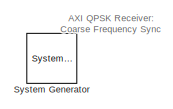
[diagram: root canvas - part 1/4, top center region]
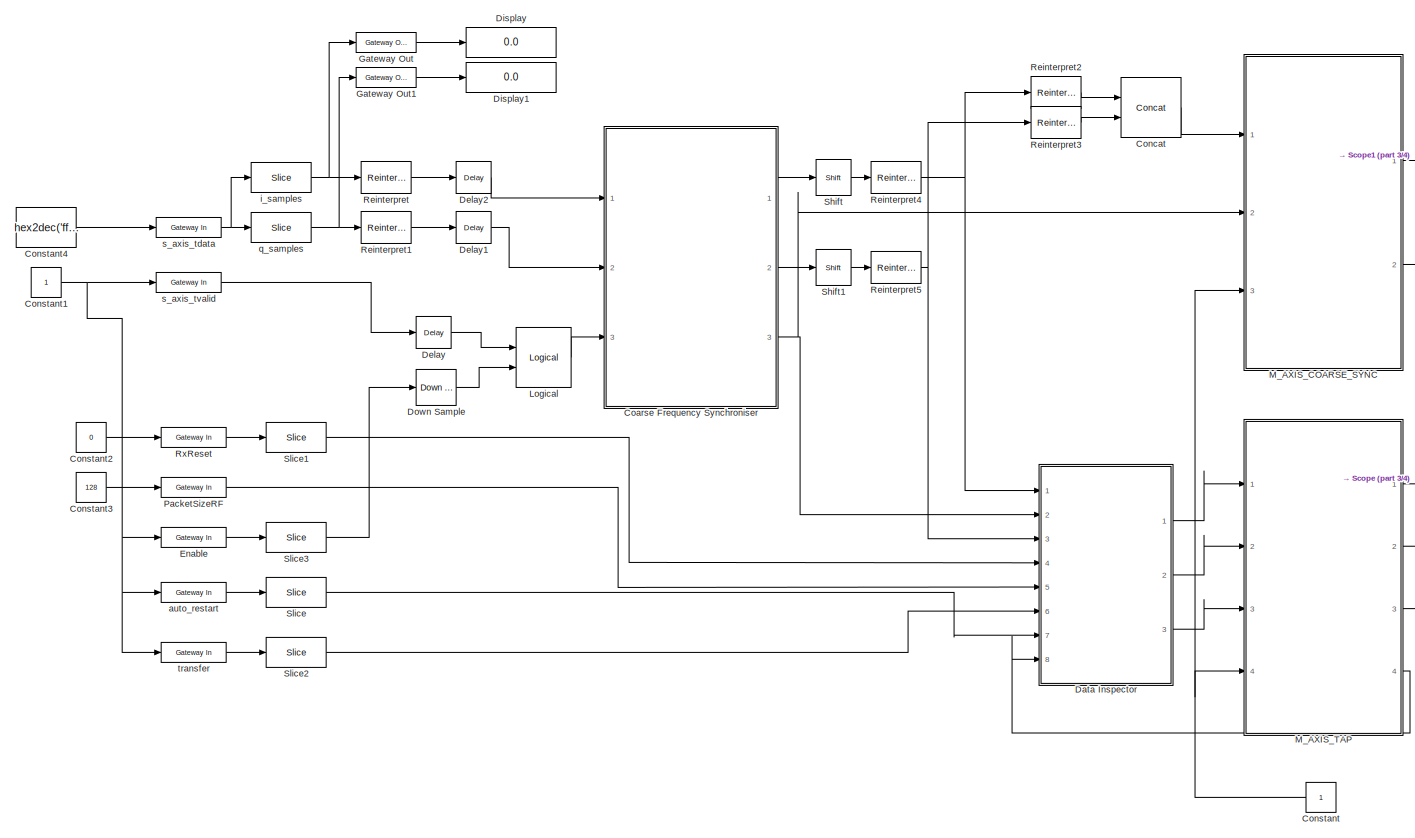
[diagram: root canvas - part 2/4, most of the canvas]
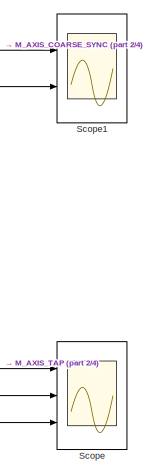
[diagram: root canvas - part 3/4, middle right region]
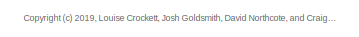
[diagram: root canvas - part 4/4, bottom right region]
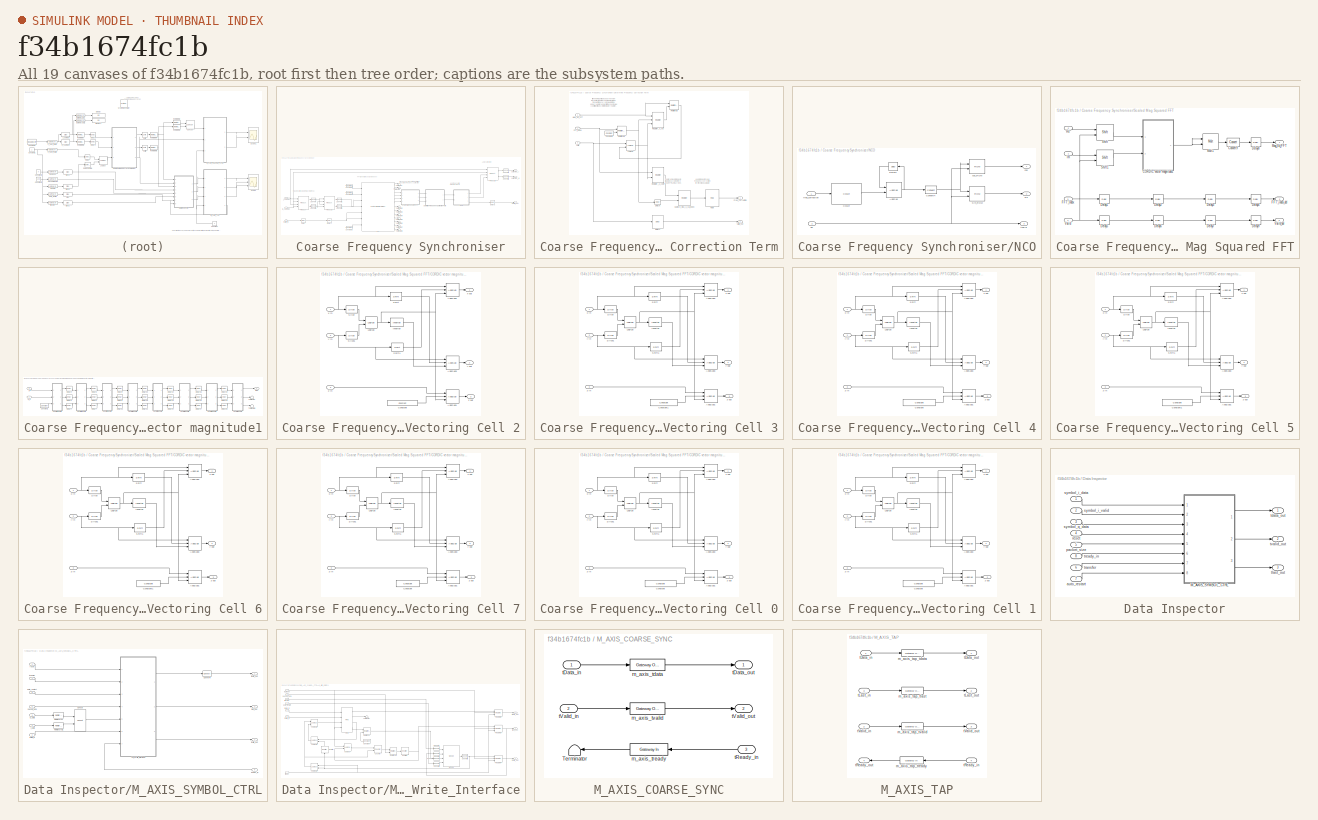
[diagram: thumbnail index - all 19 canvases of the model, root first then tree order]
MODEL slx_f34b1674fc1b
KIND model
CONFIG AbsTol = auto
CONFIG EnableMultiTasking = off
CONFIG FixedStep = auto
CONFIG InitFcn = fs_in = 25.6e6;
CONFIG MaxStep = auto
CONFIG MinStep = auto
CONFIG PreLoadFcn = design_filters_rx;      % run script to generate filter designs.\n\nRb = 1000;   % 1kbit / s\n\nRsym = Rb/2;   % 2 bits per symbol\n\nRsymbol = Rb/2;\n\nOSR = 32;\n\nf_error = 120;\n\nfc = 100e3;\n\nfs_in = 25.6e6;\n
CONFIG RelTol = 1e-3
CONFIG SampleTimeConstraint = Unconstrained
CONFIG Solver = VariableStepAuto
CONFIG SolverName = VariableStepAuto
CONFIG StartTime = 0.0
CONFIG StopTime = 10.0
BLOCK [Reference]  System Generator  REF=xbsIndex_r4/ System Generator
  AttributesFormatString = System\nGenerator
  Ports = []
  SourceBlock = xbsIndex_r4/ System Generator
  SourceType = Xilinx System Generator Block
  Tag = genX
  UserDataPersistent = on
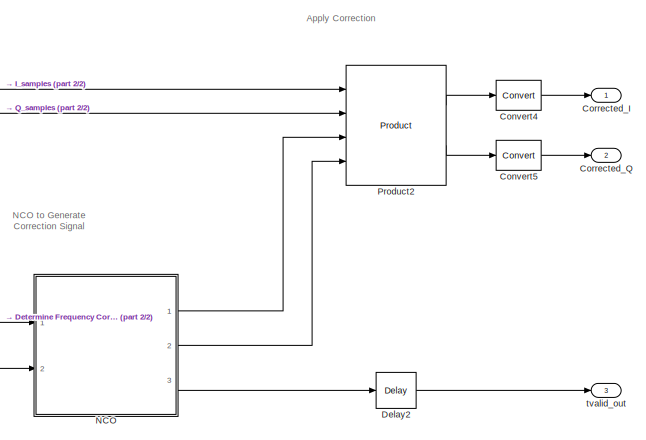
[diagram: Coarse Frequency Synchroniser - part 1/2, middle right region]
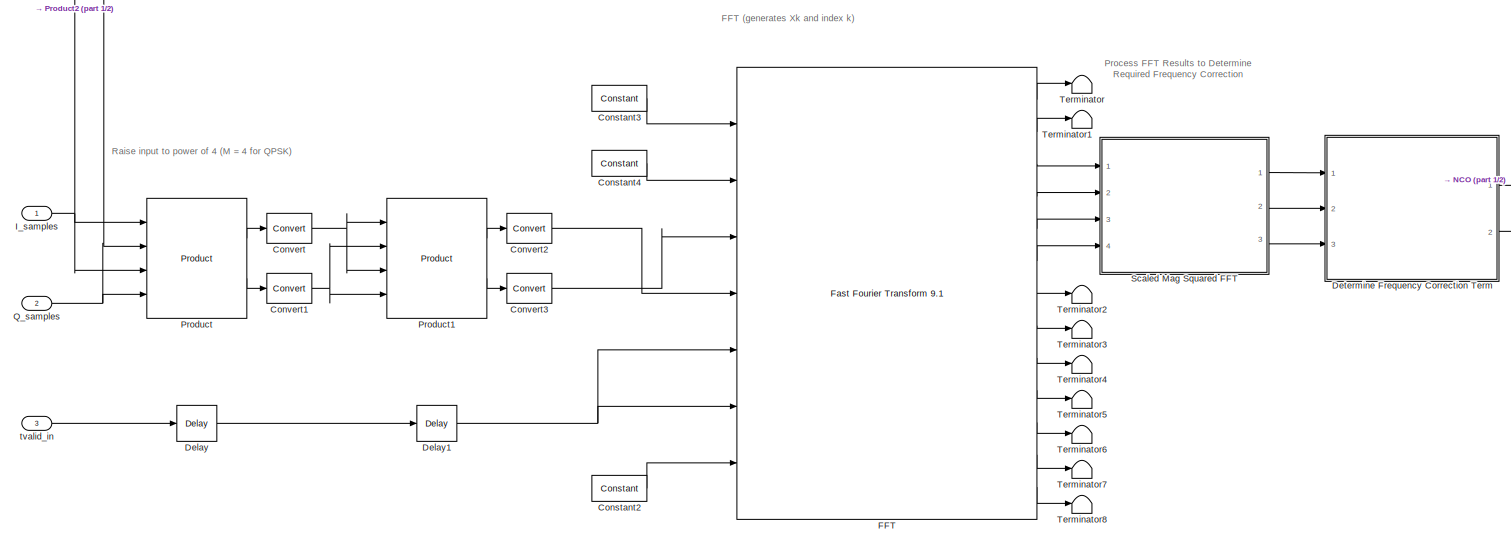
[diagram: Coarse Frequency Synchroniser - part 2/2, center side, full height]
BLOCK [SubSystem] Coarse Frequency Synchroniser
  Ports = [3, 3]
  RequestExecContextInheritance = off
BLOCK [Reference] Coarse Frequency Synchroniser/Constant2  REF=xbsIndex_r4/Constant
  Ports = [0, 1]
  SourceBlock = xbsIndex_r4/Constant
  SourceType = Xilinx Constant Block Block
BLOCK [Reference] Coarse Frequency Synchroniser/Constant3  REF=xbsIndex_r4/Constant
  Ports = [0, 1]
  SourceBlock = xbsIndex_r4/Constant
  SourceType = Xilinx Constant Block Block
BLOCK [Reference] Coarse Frequency Synchroniser/Constant4  REF=xbsIndex_r4/Constant
  Ports = [0, 1]
  SourceBlock = xbsIndex_r4/Constant
  SourceType = Xilinx Constant Block Block
BLOCK [Reference] Coarse Frequency Synchroniser/Convert  REF=xbsIndex_r4/Convert
  Ports = [1, 1]
  SourceBlock = xbsIndex_r4/Convert
  SourceType = Xilinx Type Converter Block
BLOCK [Reference] Coarse Frequency Synchroniser/Convert1  REF=xbsIndex_r4/Convert
  Ports = [1, 1]
  SourceBlock = xbsIndex_r4/Convert
  SourceType = Xilinx Type Converter Block
BLOCK [Reference] Coarse Frequency Synchroniser/Convert2  REF=xbsIndex_r4/Convert
  Ports = [1, 1]
  SourceBlock = xbsIndex_r4/Convert
  SourceType = Xilinx Type Converter Block
BLOCK [Reference] Coarse Frequency Synchroniser/Convert3  REF=xbsIndex_r4/Convert
  Ports = [1, 1]
  SourceBlock = xbsIndex_r4/Convert
  SourceType = Xilinx Type Converter Block
BLOCK [Reference] Coarse Frequency Synchroniser/Convert4  REF=xbsIndex_r4/Convert
  Ports = [1, 1]
  SourceBlock = xbsIndex_r4/Convert
  SourceType = Xilinx Type Converter Block
BLOCK [Reference] Coarse Frequency Synchroniser/Convert5  REF=xbsIndex_r4/Convert
  Ports = [1, 1]
  SourceBlock = xbsIndex_r4/Convert
  SourceType = Xilinx Type Converter Block
BLOCK [Outport] Coarse Frequency Synchroniser/Corrected_I
  VectorParamsAs1DForOutWhenUnconnected = off
BLOCK [Outport] Coarse Frequency Synchroniser/Corrected_Q
  Port = 2
  VectorParamsAs1DForOutWhenUnconnected = off
BLOCK [Reference] Coarse Frequency Synchroniser/Delay  REF=xbsIndex_r4/Delay
  Ports = [1, 1]
  SourceBlock = xbsIndex_r4/Delay
  SourceType = Xilinx Delay Block
BLOCK [Reference] Coarse Frequency Synchroniser/Delay1  REF=xbsIndex_r4/Delay
  Ports = [1, 1]
  SourceBlock = xbsIndex_r4/Delay
  SourceType = Xilinx Delay Block
BLOCK [Reference] Coarse Frequency Synchroniser/Delay2  REF=xbsIndex_r4/Delay
  Ports = [1, 1]
  SourceBlock = xbsIndex_r4/Delay
  SourceType = Xilinx Delay Block
BLOCK [SubSystem] Coarse Frequency Synchroniser/Determine Frequency Correction Term
  Ports = [3, 2]
  RequestExecContextInheritance = off
BLOCK [Reference] Coarse Frequency Synchroniser/Determine Frequency Correction Term/Capture_max_X_val_index  REF=xbsIndex_r4/Register
  Ports = [2, 1]
  SourceBlock = xbsIndex_r4/Register
  SourceType = Xilinx Register Block
BLOCK [Reference] Coarse Frequency Synchroniser/Determine Frequency Correction Term/Constant5  REF=xbsIndex_r4/Constant
  Ports = [0, 1]
  SourceBlock = xbsIndex_r4/Constant
  SourceType = Xilinx Constant Block Block
BLOCK [Reference] Coarse Frequency Synchroniser/Determine Frequency Correction Term/Delay1  REF=xbsIndex_r4/Delay
  Ports = [1, 1]
  SourceBlock = xbsIndex_r4/Delay
  SourceType = Xilinx Delay Block
BLOCK [Reference] Coarse Frequency Synchroniser/Determine Frequency Correction Term/Delay6  REF=xbsIndex_r4/Delay
  Ports = [1, 1]
  SourceBlock = xbsIndex_r4/Delay
  SourceType = Xilinx Delay Block
BLOCK [Inport] Coarse Frequency Synchroniser/Determine Frequency Correction Term/FFT_index
  Port = 2
BLOCK [Outport] Coarse Frequency Synchroniser/Determine Frequency Correction Term/Freq_correction
  VectorParamsAs1DForOutWhenUnconnected = off
BLOCK [Reference] Coarse Frequency Synchroniser/Determine Frequency Correction Term/Logical  REF=xbsIndex_r4/Logical
  Ports = [2, 1]
  SourceBlock = xbsIndex_r4/Logical
  SourceType = Xilinx Logical Block Block
BLOCK [Inport] Coarse Frequency Synchroniser/Determine Frequency Correction Term/Mag_Sq_FFT
BLOCK [Reference] Coarse Frequency Synchroniser/Determine Frequency Correction Term/ROM  REF=xbsIndex_r4/ROM
  Ports = [1, 1]
  SourceBlock = xbsIndex_r4/ROM
  SourceType = Xilinx Single Port Read-Only Memory Block
BLOCK [Reference] Coarse Frequency Synchroniser/Determine Frequency Correction Term/Register_X_coeff  REF=xbsIndex_r4/Register
  Ports = [2, 1]
  SourceBlock = xbsIndex_r4/Register
  SourceType = Xilinx Register Block
BLOCK [Reference] Coarse Frequency Synchroniser/Determine Frequency Correction Term/Register_X_val  REF=xbsIndex_r4/Register
  Ports = [3, 1]
  SourceBlock = xbsIndex_r4/Register
  SourceType = Xilinx Register Block
BLOCK [Reference] Coarse Frequency Synchroniser/Determine Frequency Correction Term/Relational2  REF=xbsIndex_r4/Relational
  Ports = [2, 1]
  SourceBlock = xbsIndex_r4/Relational
  SourceType = Xilinx Arithmetic Relational Operator Block
BLOCK [Reference] Coarse Frequency Synchroniser/Determine Frequency Correction Term/Relational3  REF=xbsIndex_r4/Relational
  Ports = [2, 1]
  SourceBlock = xbsIndex_r4/Relational
  SourceType = Xilinx Arithmetic Relational Operator Block
BLOCK [Inport] Coarse Frequency Synchroniser/Determine Frequency Correction Term/Valid
  Port = 3
BLOCK [Outport] Coarse Frequency Synchroniser/Determine Frequency Correction Term/Valid_out
  Port = 2
  VectorParamsAs1DForOutWhenUnconnected = off
BLOCK [Reference] Coarse Frequency Synchroniser/FFT  REF=xbsIndex_r4/Fast Fourier Transform 9.1 
  Ports = [7, 13]
  SourceBlock = xbsIndex_r4/Fast Fourier Transform 9.1
  SourceType = Xilinx Fast Fourier Transform 9.1  Block
BLOCK [Inport] Coarse Frequency Synchroniser/I_samples
BLOCK [SubSystem] Coarse Frequency Synchroniser/NCO
  Ports = [2, 3]
  RequestExecContextInheritance = off
BLOCK [Reference] Coarse Frequency Synchroniser/NCO/AddSub  REF=xbsIndex_r4/AddSub
  Ports = [2, 1]
  SourceBlock = xbsIndex_r4/AddSub
  SourceType = Xilinx Adder/Subtracter Block
BLOCK [Reference] Coarse Frequency Synchroniser/NCO/CMult  REF=xbsIndex_r4/CMult
  Ports = [1, 1]
  SourceBlock = xbsIndex_r4/CMult
  SourceType = Xilinx Constant Multiplier Block
BLOCK [Reference] Coarse Frequency Synchroniser/NCO/Convert4  REF=xbsIndex_r4/Convert
  Ports = [1, 1]
  SourceBlock = xbsIndex_r4/Convert
  SourceType = Xilinx Type Converter Block
BLOCK [Reference] Coarse Frequency Synchroniser/NCO/Delay2  REF=xbsIndex_r4/Delay
  Ports = [1, 1]
  SourceBlock = xbsIndex_r4/Delay
  SourceType = Xilinx Delay Block
BLOCK [Reference] Coarse Frequency Synchroniser/NCO/Sin_ROM  REF=xbsIndex_r4/ROM
  Ports = [2, 1]
  SourceBlock = xbsIndex_r4/ROM
  SourceType = Xilinx Single Port Read-Only Memory Block
BLOCK [Outport] Coarse Frequency Synchroniser/NCO/cos
  VectorParamsAs1DForOutWhenUnconnected = off
BLOCK [Reference] Coarse Frequency Synchroniser/NCO/cos_ROM  REF=xbsIndex_r4/ROM
  Ports = [2, 1]
  SourceBlock = xbsIndex_r4/ROM
  SourceType = Xilinx Single Port Read-Only Memory Block
BLOCK [Inport] Coarse Frequency Synchroniser/NCO/en
  Port = 2
BLOCK [Inport] Coarse Frequency Synchroniser/NCO/freq_correction
BLOCK [Outport] Coarse Frequency Synchroniser/NCO/sin
  Port = 2
  VectorParamsAs1DForOutWhenUnconnected = off
BLOCK [Outport] Coarse Frequency Synchroniser/NCO/tvalid
  Port = 3
  VectorParamsAs1DForOutWhenUnconnected = off
BLOCK [Reference] Coarse Frequency Synchroniser/Product  REF=xbsIndex_r4/Product
  Ports = [4, 2]
  SourceBlock = xbsIndex_r4/Product
  SourceType = Xilinx Multiplier Block
BLOCK [Reference] Coarse Frequency Synchroniser/Product1  REF=xbsIndex_r4/Product
  Ports = [4, 2]
  SourceBlock = xbsIndex_r4/Product
  SourceType = Xilinx Multiplier Block
BLOCK [Reference] Coarse Frequency Synchroniser/Product2  REF=xbsIndex_r4/Product
  Ports = [4, 2]
  SourceBlock = xbsIndex_r4/Product
  SourceType = Xilinx Multiplier Block
BLOCK [Inport] Coarse Frequency Synchroniser/Q_samples
  Port = 2
BLOCK [SubSystem] Coarse Frequency Synchroniser/Scaled Mag Squared FFT
  Ports = [4, 3]
  RequestExecContextInheritance = off
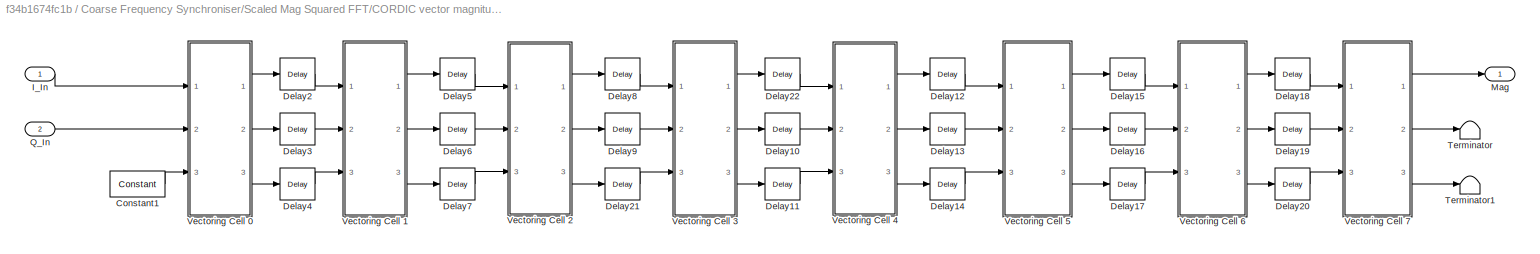
BLOCK [SubSystem] Coarse Frequency Synchroniser/Scaled Mag Squared FFT/CORDIC vector magnitude1
  Ports = [2, 1]
  RequestExecContextInheritance = off
BLOCK [Reference] Coarse Frequency Synchroniser/Scaled Mag Squared FFT/CORDIC vector magnitude1/Constant1  REF=xbsIndex_r4/Constant
  Ports = [0, 1]
  SourceBlock = xbsIndex_r4/Constant
  SourceType = Xilinx Constant Block Block
BLOCK [Reference] Coarse Frequency Synchroniser/Scaled Mag Squared FFT/CORDIC vector magnitude1/Delay10  REF=xbsIndex_r4/Delay
  Ports = [1, 1]
  SourceBlock = xbsIndex_r4/Delay
  SourceType = Xilinx Delay Block
BLOCK [Reference] Coarse Frequency Synchroniser/Scaled Mag Squared FFT/CORDIC vector magnitude1/Delay11  REF=xbsIndex_r4/Delay
  Ports = [1, 1]
  SourceBlock = xbsIndex_r4/Delay
  SourceType = Xilinx Delay Block
BLOCK [Reference] Coarse Frequency Synchroniser/Scaled Mag Squared FFT/CORDIC vector magnitude1/Delay12  REF=xbsIndex_r4/Delay
  Ports = [1, 1]
  SourceBlock = xbsIndex_r4/Delay
  SourceType = Xilinx Delay Block
BLOCK [Reference] Coarse Frequency Synchroniser/Scaled Mag Squared FFT/CORDIC vector magnitude1/Delay13  REF=xbsIndex_r4/Delay
  Ports = [1, 1]
  SourceBlock = xbsIndex_r4/Delay
  SourceType = Xilinx Delay Block
BLOCK [Reference] Coarse Frequency Synchroniser/Scaled Mag Squared FFT/CORDIC vector magnitude1/Delay14  REF=xbsIndex_r4/Delay
  Ports = [1, 1]
  SourceBlock = xbsIndex_r4/Delay
  SourceType = Xilinx Delay Block
BLOCK [Reference] Coarse Frequency Synchroniser/Scaled Mag Squared FFT/CORDIC vector magnitude1/Delay15  REF=xbsIndex_r4/Delay
  Ports = [1, 1]
  SourceBlock = xbsIndex_r4/Delay
  SourceType = Xilinx Delay Block
BLOCK [Reference] Coarse Frequency Synchroniser/Scaled Mag Squared FFT/CORDIC vector magnitude1/Delay16  REF=xbsIndex_r4/Delay
  Ports = [1, 1]
  SourceBlock = xbsIndex_r4/Delay
  SourceType = Xilinx Delay Block
BLOCK [Reference] Coarse Frequency Synchroniser/Scaled Mag Squared FFT/CORDIC vector magnitude1/Delay17  REF=xbsIndex_r4/Delay
  Ports = [1, 1]
  SourceBlock = xbsIndex_r4/Delay
  SourceType = Xilinx Delay Block
BLOCK [Reference] Coarse Frequency Synchroniser/Scaled Mag Squared FFT/CORDIC vector magnitude1/Delay18  REF=xbsIndex_r4/Delay
  Ports = [1, 1]
  SourceBlock = xbsIndex_r4/Delay
  SourceType = Xilinx Delay Block
BLOCK [Reference] Coarse Frequency Synchroniser/Scaled Mag Squared FFT/CORDIC vector magnitude1/Delay19  REF=xbsIndex_r4/Delay
  Ports = [1, 1]
  SourceBlock = xbsIndex_r4/Delay
  SourceType = Xilinx Delay Block
BLOCK [Reference] Coarse Frequency Synchroniser/Scaled Mag Squared FFT/CORDIC vector magnitude1/Delay2  REF=xbsIndex_r4/Delay
  Ports = [1, 1]
  SourceBlock = xbsIndex_r4/Delay
  SourceType = Xilinx Delay Block
BLOCK [Reference] Coarse Frequency Synchroniser/Scaled Mag Squared FFT/CORDIC vector magnitude1/Delay20  REF=xbsIndex_r4/Delay
  Ports = [1, 1]
  SourceBlock = xbsIndex_r4/Delay
  SourceType = Xilinx Delay Block
BLOCK [Reference] Coarse Frequency Synchroniser/Scaled Mag Squared FFT/CORDIC vector magnitude1/Delay21  REF=xbsIndex_r4/Delay
  Ports = [1, 1]
  SourceBlock = xbsIndex_r4/Delay
  SourceType = Xilinx Delay Block
BLOCK [Reference] Coarse Frequency Synchroniser/Scaled Mag Squared FFT/CORDIC vector magnitude1/Delay22  REF=xbsIndex_r4/Delay
  Ports = [1, 1]
  SourceBlock = xbsIndex_r4/Delay
  SourceType = Xilinx Delay Block
BLOCK [Reference] Coarse Frequency Synchroniser/Scaled Mag Squared FFT/CORDIC vector magnitude1/Delay3  REF=xbsIndex_r4/Delay
  Ports = [1, 1]
  SourceBlock = xbsIndex_r4/Delay
  SourceType = Xilinx Delay Block
BLOCK [Reference] Coarse Frequency Synchroniser/Scaled Mag Squared FFT/CORDIC vector magnitude1/Delay4  REF=xbsIndex_r4/Delay
  Ports = [1, 1]
  SourceBlock = xbsIndex_r4/Delay
  SourceType = Xilinx Delay Block
BLOCK [Reference] Coarse Frequency Synchroniser/Scaled Mag Squared FFT/CORDIC vector magnitude1/Delay5  REF=xbsIndex_r4/Delay
  Ports = [1, 1]
  SourceBlock = xbsIndex_r4/Delay
  SourceType = Xilinx Delay Block
BLOCK [Reference] Coarse Frequency Synchroniser/Scaled Mag Squared FFT/CORDIC vector magnitude1/Delay6  REF=xbsIndex_r4/Delay
  Ports = [1, 1]
  SourceBlock = xbsIndex_r4/Delay
  SourceType = Xilinx Delay Block
BLOCK [Reference] Coarse Frequency Synchroniser/Scaled Mag Squared FFT/CORDIC vector magnitude1/Delay7  REF=xbsIndex_r4/Delay
  Ports = [1, 1]
  SourceBlock = xbsIndex_r4/Delay
  SourceType = Xilinx Delay Block
BLOCK [Reference] Coarse Frequency Synchroniser/Scaled Mag Squared FFT/CORDIC vector magnitude1/Delay8  REF=xbsIndex_r4/Delay
  Ports = [1, 1]
  SourceBlock = xbsIndex_r4/Delay
  SourceType = Xilinx Delay Block
BLOCK [Reference] Coarse Frequency Synchroniser/Scaled Mag Squared FFT/CORDIC vector magnitude1/Delay9  REF=xbsIndex_r4/Delay
  Ports = [1, 1]
  SourceBlock = xbsIndex_r4/Delay
  SourceType = Xilinx Delay Block
BLOCK [Inport] Coarse Frequency Synchroniser/Scaled Mag Squared FFT/CORDIC vector magnitude1/I_In
BLOCK [Outport] Coarse Frequency Synchroniser/Scaled Mag Squared FFT/CORDIC vector magnitude1/Mag
  VectorParamsAs1DForOutWhenUnconnected = off
BLOCK [Inport] Coarse Frequency Synchroniser/Scaled Mag Squared FFT/CORDIC vector magnitude1/Q_In
  Port = 2
BLOCK [Terminator] Coarse Frequency Synchroniser/Scaled Mag Squared FFT/CORDIC vector magnitude1/Terminator
BLOCK [Terminator] Coarse Frequency Synchroniser/Scaled Mag Squared FFT/CORDIC vector magnitude1/Terminator1
BLOCK [SubSystem] Coarse Frequency Synchroniser/Scaled Mag Squared FFT/CORDIC vector magnitude1/Vectoring Cell 0
  Ports = [3, 3]
  RequestExecContextInheritance = off
BLOCK [Reference] Coarse Frequency Synchroniser/Scaled Mag Squared FFT/CORDIC vector magnitude1/Vectoring Cell 0/AddSub1  REF=xbsIndex_r4/AddSub
  Ports = [3, 1]
  SourceBlock = xbsIndex_r4/AddSub
  SourceType = Xilinx Adder/Subtracter Block
BLOCK [Reference] Coarse Frequency Synchroniser/Scaled Mag Squared FFT/CORDIC vector magnitude1/Vectoring Cell 0/AddSub2  REF=xbsIndex_r4/AddSub
  Ports = [3, 1]
  SourceBlock = xbsIndex_r4/AddSub
  SourceType = Xilinx Adder/Subtracter Block
BLOCK [Reference] Coarse Frequency Synchroniser/Scaled Mag Squared FFT/CORDIC vector magnitude1/Vectoring Cell 0/AddSub3  REF=xbsIndex_r4/AddSub
  Ports = [3, 1]
  SourceBlock = xbsIndex_r4/AddSub
  SourceType = Xilinx Adder/Subtracter Block
BLOCK [Reference] Coarse Frequency Synchroniser/Scaled Mag Squared FFT/CORDIC vector magnitude1/Vectoring Cell 0/Constant  REF=xbsIndex_r4/Constant
  Ports = [0, 1]
  SourceBlock = xbsIndex_r4/Constant
  SourceType = Xilinx Constant Block Block
BLOCK [Reference] Coarse Frequency Synchroniser/Scaled Mag Squared FFT/CORDIC vector magnitude1/Vectoring Cell 0/Inverter  REF=xbsIndex_r4/Inverter
  Ports = [1, 1]
  SourceBlock = xbsIndex_r4/Inverter
  SourceType = Xilinx Inverter Block
BLOCK [Reference] Coarse Frequency Synchroniser/Scaled Mag Squared FFT/CORDIC vector magnitude1/Vectoring Cell 0/Logical  REF=xbsIndex_r4/Logical
  Ports = [2, 1]
  SourceBlock = xbsIndex_r4/Logical
  SourceType = Xilinx Logical Block Block
BLOCK [Reference] Coarse Frequency Synchroniser/Scaled Mag Squared FFT/CORDIC vector magnitude1/Vectoring Cell 0/Shift  REF=xbsIndex_r4/Shift
  Ports = [1, 1]
  SourceBlock = xbsIndex_r4/Shift
  SourceType = Xilinx Binary Shift Operator Block
BLOCK [Reference] Coarse Frequency Synchroniser/Scaled Mag Squared FFT/CORDIC vector magnitude1/Vectoring Cell 0/Shift1  REF=xbsIndex_r4/Shift
  Ports = [1, 1]
  SourceBlock = xbsIndex_r4/Shift
  SourceType = Xilinx Binary Shift Operator Block
BLOCK [Reference] Coarse Frequency Synchroniser/Scaled Mag Squared FFT/CORDIC vector magnitude1/Vectoring Cell 0/Slice  REF=xbsIndex_r4/Slice
  Ports = [1, 1]
  SourceBlock = xbsIndex_r4/Slice
  SourceType = Xilinx Bit Slice Extractor Block
BLOCK [Reference] Coarse Frequency Synchroniser/Scaled Mag Squared FFT/CORDIC vector magnitude1/Vectoring Cell 0/Slice1  REF=xbsIndex_r4/Slice
  Ports = [1, 1]
  SourceBlock = xbsIndex_r4/Slice
  SourceType = Xilinx Bit Slice Extractor Block
BLOCK [Inport] Coarse Frequency Synchroniser/Scaled Mag Squared FFT/CORDIC vector magnitude1/Vectoring Cell 0/x in
BLOCK [Outport] Coarse Frequency Synchroniser/Scaled Mag Squared FFT/CORDIC vector magnitude1/Vectoring Cell 0/x out
  VectorParamsAs1DForOutWhenUnconnected = off
BLOCK [Inport] Coarse Frequency Synchroniser/Scaled Mag Squared FFT/CORDIC vector magnitude1/Vectoring Cell 0/y in
  Port = 2
BLOCK [Outport] Coarse Frequency Synchroniser/Scaled Mag Squared FFT/CORDIC vector magnitude1/Vectoring Cell 0/y out
  Port = 2
  VectorParamsAs1DForOutWhenUnconnected = off
BLOCK [Inport] Coarse Frequency Synchroniser/Scaled Mag Squared FFT/CORDIC vector magnitude1/Vectoring Cell 0/z in
  Port = 3
BLOCK [Outport] Coarse Frequency Synchroniser/Scaled Mag Squared FFT/CORDIC vector magnitude1/Vectoring Cell 0/z out
  Port = 3
  VectorParamsAs1DForOutWhenUnconnected = off
BLOCK [SubSystem] Coarse Frequency Synchroniser/Scaled Mag Squared FFT/CORDIC vector magnitude1/Vectoring Cell 1
  Ports = [3, 3]
  RequestExecContextInheritance = off
BLOCK [Reference] Coarse Frequency Synchroniser/Scaled Mag Squared FFT/CORDIC vector magnitude1/Vectoring Cell 1/AddSub1  REF=xbsIndex_r4/AddSub
  Ports = [3, 1]
  SourceBlock = xbsIndex_r4/AddSub
  SourceType = Xilinx Adder/Subtracter Block
BLOCK [Reference] Coarse Frequency Synchroniser/Scaled Mag Squared FFT/CORDIC vector magnitude1/Vectoring Cell 1/AddSub2  REF=xbsIndex_r4/AddSub
  Ports = [3, 1]
  SourceBlock = xbsIndex_r4/AddSub
  SourceType = Xilinx Adder/Subtracter Block
BLOCK [Reference] Coarse Frequency Synchroniser/Scaled Mag Squared FFT/CORDIC vector magnitude1/Vectoring Cell 1/AddSub3  REF=xbsIndex_r4/AddSub
  Ports = [3, 1]
  SourceBlock = xbsIndex_r4/AddSub
  SourceType = Xilinx Adder/Subtracter Block
BLOCK [Reference] Coarse Frequency Synchroniser/Scaled Mag Squared FFT/CORDIC vector magnitude1/Vectoring Cell 1/Constant  REF=xbsIndex_r4/Constant
  Ports = [0, 1]
  SourceBlock = xbsIndex_r4/Constant
  SourceType = Xilinx Constant Block Block
BLOCK [Reference] Coarse Frequency Synchroniser/Scaled Mag Squared FFT/CORDIC vector magnitude1/Vectoring Cell 1/Inverter  REF=xbsIndex_r4/Inverter
  Ports = [1, 1]
  SourceBlock = xbsIndex_r4/Inverter
  SourceType = Xilinx Inverter Block
BLOCK [Reference] Coarse Frequency Synchroniser/Scaled Mag Squared FFT/CORDIC vector magnitude1/Vectoring Cell 1/Logical  REF=xbsIndex_r4/Logical
  Ports = [2, 1]
  SourceBlock = xbsIndex_r4/Logical
  SourceType = Xilinx Logical Block Block
BLOCK [Reference] Coarse Frequency Synchroniser/Scaled Mag Squared FFT/CORDIC vector magnitude1/Vectoring Cell 1/Shift  REF=xbsIndex_r4/Shift
  Ports = [1, 1]
  SourceBlock = xbsIndex_r4/Shift
  SourceType = Xilinx Binary Shift Operator Block
BLOCK [Reference] Coarse Frequency Synchroniser/Scaled Mag Squared FFT/CORDIC vector magnitude1/Vectoring Cell 1/Shift1  REF=xbsIndex_r4/Shift
  Ports = [1, 1]
  SourceBlock = xbsIndex_r4/Shift
  SourceType = Xilinx Binary Shift Operator Block
BLOCK [Reference] Coarse Frequency Synchroniser/Scaled Mag Squared FFT/CORDIC vector magnitude1/Vectoring Cell 1/Slice  REF=xbsIndex_r4/Slice
  Ports = [1, 1]
  SourceBlock = xbsIndex_r4/Slice
  SourceType = Xilinx Bit Slice Extractor Block
BLOCK [Reference] Coarse Frequency Synchroniser/Scaled Mag Squared FFT/CORDIC vector magnitude1/Vectoring Cell 1/Slice1  REF=xbsIndex_r4/Slice
  Ports = [1, 1]
  SourceBlock = xbsIndex_r4/Slice
  SourceType = Xilinx Bit Slice Extractor Block
BLOCK [Inport] Coarse Frequency Synchroniser/Scaled Mag Squared FFT/CORDIC vector magnitude1/Vectoring Cell 1/x in
BLOCK [Outport] Coarse Frequency Synchroniser/Scaled Mag Squared FFT/CORDIC vector magnitude1/Vectoring Cell 1/x out
  VectorParamsAs1DForOutWhenUnconnected = off
BLOCK [Inport] Coarse Frequency Synchroniser/Scaled Mag Squared FFT/CORDIC vector magnitude1/Vectoring Cell 1/y in
  Port = 2
BLOCK [Outport] Coarse Frequency Synchroniser/Scaled Mag Squared FFT/CORDIC vector magnitude1/Vectoring Cell 1/y out
  Port = 2
  VectorParamsAs1DForOutWhenUnconnected = off
BLOCK [Inport] Coarse Frequency Synchroniser/Scaled Mag Squared FFT/CORDIC vector magnitude1/Vectoring Cell 1/z in
  Port = 3
BLOCK [Outport] Coarse Frequency Synchroniser/Scaled Mag Squared FFT/CORDIC vector magnitude1/Vectoring Cell 1/z out
  Port = 3
  VectorParamsAs1DForOutWhenUnconnected = off
BLOCK [SubSystem] Coarse Frequency Synchroniser/Scaled Mag Squared FFT/CORDIC vector magnitude1/Vectoring Cell 2
  Ports = [3, 3]
  RequestExecContextInheritance = off
BLOCK [Reference] Coarse Frequency Synchroniser/Scaled Mag Squared FFT/CORDIC vector magnitude1/Vectoring Cell 2/AddSub1  REF=xbsIndex_r4/AddSub
  Ports = [3, 1]
  SourceBlock = xbsIndex_r4/AddSub
  SourceType = Xilinx Adder/Subtracter Block
BLOCK [Reference] Coarse Frequency Synchroniser/Scaled Mag Squared FFT/CORDIC vector magnitude1/Vectoring Cell 2/AddSub2  REF=xbsIndex_r4/AddSub
  Ports = [3, 1]
  SourceBlock = xbsIndex_r4/AddSub
  SourceType = Xilinx Adder/Subtracter Block
BLOCK [Reference] Coarse Frequency Synchroniser/Scaled Mag Squared FFT/CORDIC vector magnitude1/Vectoring Cell 2/AddSub3  REF=xbsIndex_r4/AddSub
  Ports = [3, 1]
  SourceBlock = xbsIndex_r4/AddSub
  SourceType = Xilinx Adder/Subtracter Block
BLOCK [Reference] Coarse Frequency Synchroniser/Scaled Mag Squared FFT/CORDIC vector magnitude1/Vectoring Cell 2/Constant  REF=xbsIndex_r4/Constant
  Ports = [0, 1]
  SourceBlock = xbsIndex_r4/Constant
  SourceType = Xilinx Constant Block Block
BLOCK [Reference] Coarse Frequency Synchroniser/Scaled Mag Squared FFT/CORDIC vector magnitude1/Vectoring Cell 2/Inverter  REF=xbsIndex_r4/Inverter
  Ports = [1, 1]
  SourceBlock = xbsIndex_r4/Inverter
  SourceType = Xilinx Inverter Block
BLOCK [Reference] Coarse Frequency Synchroniser/Scaled Mag Squared FFT/CORDIC vector magnitude1/Vectoring Cell 2/Logical  REF=xbsIndex_r4/Logical
  Ports = [2, 1]
  SourceBlock = xbsIndex_r4/Logical
  SourceType = Xilinx Logical Block Block
BLOCK [Reference] Coarse Frequency Synchroniser/Scaled Mag Squared FFT/CORDIC vector magnitude1/Vectoring Cell 2/Shift  REF=xbsIndex_r4/Shift
  Ports = [1, 1]
  SourceBlock = xbsIndex_r4/Shift
  SourceType = Xilinx Binary Shift Operator Block
BLOCK [Reference] Coarse Frequency Synchroniser/Scaled Mag Squared FFT/CORDIC vector magnitude1/Vectoring Cell 2/Shift1  REF=xbsIndex_r4/Shift
  Ports = [1, 1]
  SourceBlock = xbsIndex_r4/Shift
  SourceType = Xilinx Binary Shift Operator Block
BLOCK [Reference] Coarse Frequency Synchroniser/Scaled Mag Squared FFT/CORDIC vector magnitude1/Vectoring Cell 2/Slice  REF=xbsIndex_r4/Slice
  Ports = [1, 1]
  SourceBlock = xbsIndex_r4/Slice
  SourceType = Xilinx Bit Slice Extractor Block
BLOCK [Reference] Coarse Frequency Synchroniser/Scaled Mag Squared FFT/CORDIC vector magnitude1/Vectoring Cell 2/Slice1  REF=xbsIndex_r4/Slice
  Ports = [1, 1]
  SourceBlock = xbsIndex_r4/Slice
  SourceType = Xilinx Bit Slice Extractor Block
BLOCK [Inport] Coarse Frequency Synchroniser/Scaled Mag Squared FFT/CORDIC vector magnitude1/Vectoring Cell 2/x in
BLOCK [Outport] Coarse Frequency Synchroniser/Scaled Mag Squared FFT/CORDIC vector magnitude1/Vectoring Cell 2/x out
  VectorParamsAs1DForOutWhenUnconnected = off
BLOCK [Inport] Coarse Frequency Synchroniser/Scaled Mag Squared FFT/CORDIC vector magnitude1/Vectoring Cell 2/y in
  Port = 2
BLOCK [Outport] Coarse Frequency Synchroniser/Scaled Mag Squared FFT/CORDIC vector magnitude1/Vectoring Cell 2/y out
  Port = 2
  VectorParamsAs1DForOutWhenUnconnected = off
BLOCK [Inport] Coarse Frequency Synchroniser/Scaled Mag Squared FFT/CORDIC vector magnitude1/Vectoring Cell 2/z in
  Port = 3
BLOCK [Outport] Coarse Frequency Synchroniser/Scaled Mag Squared FFT/CORDIC vector magnitude1/Vectoring Cell 2/z out
  Port = 3
  VectorParamsAs1DForOutWhenUnconnected = off
BLOCK [SubSystem] Coarse Frequency Synchroniser/Scaled Mag Squared FFT/CORDIC vector magnitude1/Vectoring Cell 3
  Ports = [3, 3]
  RequestExecContextInheritance = off
BLOCK [Reference] Coarse Frequency Synchroniser/Scaled Mag Squared FFT/CORDIC vector magnitude1/Vectoring Cell 3/AddSub1  REF=xbsIndex_r4/AddSub
  Ports = [3, 1]
  SourceBlock = xbsIndex_r4/AddSub
  SourceType = Xilinx Adder/Subtracter Block
BLOCK [Reference] Coarse Frequency Synchroniser/Scaled Mag Squared FFT/CORDIC vector magnitude1/Vectoring Cell 3/AddSub2  REF=xbsIndex_r4/AddSub
  Ports = [3, 1]
  SourceBlock = xbsIndex_r4/AddSub
  SourceType = Xilinx Adder/Subtracter Block
BLOCK [Reference] Coarse Frequency Synchroniser/Scaled Mag Squared FFT/CORDIC vector magnitude1/Vectoring Cell 3/AddSub3  REF=xbsIndex_r4/AddSub
  Ports = [3, 1]
  SourceBlock = xbsIndex_r4/AddSub
  SourceType = Xilinx Adder/Subtracter Block
BLOCK [Reference] Coarse Frequency Synchroniser/Scaled Mag Squared FFT/CORDIC vector magnitude1/Vectoring Cell 3/Constant1  REF=xbsIndex_r4/Constant
  Ports = [0, 1]
  SourceBlock = xbsIndex_r4/Constant
  SourceType = Xilinx Constant Block Block
BLOCK [Reference] Coarse Frequency Synchroniser/Scaled Mag Squared FFT/CORDIC vector magnitude1/Vectoring Cell 3/Inverter  REF=xbsIndex_r4/Inverter
  Ports = [1, 1]
  SourceBlock = xbsIndex_r4/Inverter
  SourceType = Xilinx Inverter Block
BLOCK [Reference] Coarse Frequency Synchroniser/Scaled Mag Squared FFT/CORDIC vector magnitude1/Vectoring Cell 3/Logical  REF=xbsIndex_r4/Logical
  Ports = [2, 1]
  SourceBlock = xbsIndex_r4/Logical
  SourceType = Xilinx Logical Block Block
BLOCK [Reference] Coarse Frequency Synchroniser/Scaled Mag Squared FFT/CORDIC vector magnitude1/Vectoring Cell 3/Shift  REF=xbsIndex_r4/Shift
  Ports = [1, 1]
  SourceBlock = xbsIndex_r4/Shift
  SourceType = Xilinx Binary Shift Operator Block
BLOCK [Reference] Coarse Frequency Synchroniser/Scaled Mag Squared FFT/CORDIC vector magnitude1/Vectoring Cell 3/Shift1  REF=xbsIndex_r4/Shift
  Ports = [1, 1]
  SourceBlock = xbsIndex_r4/Shift
  SourceType = Xilinx Binary Shift Operator Block
BLOCK [Reference] Coarse Frequency Synchroniser/Scaled Mag Squared FFT/CORDIC vector magnitude1/Vectoring Cell 3/Slice  REF=xbsIndex_r4/Slice
  Ports = [1, 1]
  SourceBlock = xbsIndex_r4/Slice
  SourceType = Xilinx Bit Slice Extractor Block
BLOCK [Reference] Coarse Frequency Synchroniser/Scaled Mag Squared FFT/CORDIC vector magnitude1/Vectoring Cell 3/Slice1  REF=xbsIndex_r4/Slice
  Ports = [1, 1]
  SourceBlock = xbsIndex_r4/Slice
  SourceType = Xilinx Bit Slice Extractor Block
BLOCK [Inport] Coarse Frequency Synchroniser/Scaled Mag Squared FFT/CORDIC vector magnitude1/Vectoring Cell 3/x in
BLOCK [Outport] Coarse Frequency Synchroniser/Scaled Mag Squared FFT/CORDIC vector magnitude1/Vectoring Cell 3/x out
  VectorParamsAs1DForOutWhenUnconnected = off
BLOCK [Inport] Coarse Frequency Synchroniser/Scaled Mag Squared FFT/CORDIC vector magnitude1/Vectoring Cell 3/y in
  Port = 2
BLOCK [Outport] Coarse Frequency Synchroniser/Scaled Mag Squared FFT/CORDIC vector magnitude1/Vectoring Cell 3/y out
  Port = 2
  VectorParamsAs1DForOutWhenUnconnected = off
BLOCK [Inport] Coarse Frequency Synchroniser/Scaled Mag Squared FFT/CORDIC vector magnitude1/Vectoring Cell 3/z in
  Port = 3
BLOCK [Outport] Coarse Frequency Synchroniser/Scaled Mag Squared FFT/CORDIC vector magnitude1/Vectoring Cell 3/z out
  Port = 3
  VectorParamsAs1DForOutWhenUnconnected = off
BLOCK [SubSystem] Coarse Frequency Synchroniser/Scaled Mag Squared FFT/CORDIC vector magnitude1/Vectoring Cell 4
  Ports = [3, 3]
  RequestExecContextInheritance = off
BLOCK [Reference] Coarse Frequency Synchroniser/Scaled Mag Squared FFT/CORDIC vector magnitude1/Vectoring Cell 4/AddSub1  REF=xbsIndex_r4/AddSub
  Ports = [3, 1]
  SourceBlock = xbsIndex_r4/AddSub
  SourceType = Xilinx Adder/Subtracter Block
BLOCK [Reference] Coarse Frequency Synchroniser/Scaled Mag Squared FFT/CORDIC vector magnitude1/Vectoring Cell 4/AddSub2  REF=xbsIndex_r4/AddSub
  Ports = [3, 1]
  SourceBlock = xbsIndex_r4/AddSub
  SourceType = Xilinx Adder/Subtracter Block
BLOCK [Reference] Coarse Frequency Synchroniser/Scaled Mag Squared FFT/CORDIC vector magnitude1/Vectoring Cell 4/AddSub3  REF=xbsIndex_r4/AddSub
  Ports = [3, 1]
  SourceBlock = xbsIndex_r4/AddSub
  SourceType = Xilinx Adder/Subtracter Block
BLOCK [Reference] Coarse Frequency Synchroniser/Scaled Mag Squared FFT/CORDIC vector magnitude1/Vectoring Cell 4/Constant  REF=xbsIndex_r4/Constant
  Ports = [0, 1]
  SourceBlock = xbsIndex_r4/Constant
  SourceType = Xilinx Constant Block Block
BLOCK [Reference] Coarse Frequency Synchroniser/Scaled Mag Squared FFT/CORDIC vector magnitude1/Vectoring Cell 4/Inverter  REF=xbsIndex_r4/Inverter
  Ports = [1, 1]
  SourceBlock = xbsIndex_r4/Inverter
  SourceType = Xilinx Inverter Block
BLOCK [Reference] Coarse Frequency Synchroniser/Scaled Mag Squared FFT/CORDIC vector magnitude1/Vectoring Cell 4/Logical  REF=xbsIndex_r4/Logical
  Ports = [2, 1]
  SourceBlock = xbsIndex_r4/Logical
  SourceType = Xilinx Logical Block Block
BLOCK [Reference] Coarse Frequency Synchroniser/Scaled Mag Squared FFT/CORDIC vector magnitude1/Vectoring Cell 4/Shift  REF=xbsIndex_r4/Shift
  Ports = [1, 1]
  SourceBlock = xbsIndex_r4/Shift
  SourceType = Xilinx Binary Shift Operator Block
BLOCK [Reference] Coarse Frequency Synchroniser/Scaled Mag Squared FFT/CORDIC vector magnitude1/Vectoring Cell 4/Shift1  REF=xbsIndex_r4/Shift
  Ports = [1, 1]
  SourceBlock = xbsIndex_r4/Shift
  SourceType = Xilinx Binary Shift Operator Block
BLOCK [Reference] Coarse Frequency Synchroniser/Scaled Mag Squared FFT/CORDIC vector magnitude1/Vectoring Cell 4/Slice  REF=xbsIndex_r4/Slice
  Ports = [1, 1]
  SourceBlock = xbsIndex_r4/Slice
  SourceType = Xilinx Bit Slice Extractor Block
BLOCK [Reference] Coarse Frequency Synchroniser/Scaled Mag Squared FFT/CORDIC vector magnitude1/Vectoring Cell 4/Slice1  REF=xbsIndex_r4/Slice
  Ports = [1, 1]
  SourceBlock = xbsIndex_r4/Slice
  SourceType = Xilinx Bit Slice Extractor Block
BLOCK [Inport] Coarse Frequency Synchroniser/Scaled Mag Squared FFT/CORDIC vector magnitude1/Vectoring Cell 4/x in
BLOCK [Outport] Coarse Frequency Synchroniser/Scaled Mag Squared FFT/CORDIC vector magnitude1/Vectoring Cell 4/x out
  VectorParamsAs1DForOutWhenUnconnected = off
BLOCK [Inport] Coarse Frequency Synchroniser/Scaled Mag Squared FFT/CORDIC vector magnitude1/Vectoring Cell 4/y in
  Port = 2
BLOCK [Outport] Coarse Frequency Synchroniser/Scaled Mag Squared FFT/CORDIC vector magnitude1/Vectoring Cell 4/y out
  Port = 2
  VectorParamsAs1DForOutWhenUnconnected = off
BLOCK [Inport] Coarse Frequency Synchroniser/Scaled Mag Squared FFT/CORDIC vector magnitude1/Vectoring Cell 4/z in
  Port = 3
BLOCK [Outport] Coarse Frequency Synchroniser/Scaled Mag Squared FFT/CORDIC vector magnitude1/Vectoring Cell 4/z out
  Port = 3
  VectorParamsAs1DForOutWhenUnconnected = off
BLOCK [SubSystem] Coarse Frequency Synchroniser/Scaled Mag Squared FFT/CORDIC vector magnitude1/Vectoring Cell 5
  Ports = [3, 3]
  RequestExecContextInheritance = off
BLOCK [Reference] Coarse Frequency Synchroniser/Scaled Mag Squared FFT/CORDIC vector magnitude1/Vectoring Cell 5/AddSub1  REF=xbsIndex_r4/AddSub
  Ports = [3, 1]
  SourceBlock = xbsIndex_r4/AddSub
  SourceType = Xilinx Adder/Subtracter Block
BLOCK [Reference] Coarse Frequency Synchroniser/Scaled Mag Squared FFT/CORDIC vector magnitude1/Vectoring Cell 5/AddSub2  REF=xbsIndex_r4/AddSub
  Ports = [3, 1]
  SourceBlock = xbsIndex_r4/AddSub
  SourceType = Xilinx Adder/Subtracter Block
BLOCK [Reference] Coarse Frequency Synchroniser/Scaled Mag Squared FFT/CORDIC vector magnitude1/Vectoring Cell 5/AddSub3  REF=xbsIndex_r4/AddSub
  Ports = [3, 1]
  SourceBlock = xbsIndex_r4/AddSub
  SourceType = Xilinx Adder/Subtracter Block
BLOCK [Reference] Coarse Frequency Synchroniser/Scaled Mag Squared FFT/CORDIC vector magnitude1/Vectoring Cell 5/Constant1  REF=xbsIndex_r4/Constant
  Ports = [0, 1]
  SourceBlock = xbsIndex_r4/Constant
  SourceType = Xilinx Constant Block Block
BLOCK [Reference] Coarse Frequency Synchroniser/Scaled Mag Squared FFT/CORDIC vector magnitude1/Vectoring Cell 5/Inverter  REF=xbsIndex_r4/Inverter
  Ports = [1, 1]
  SourceBlock = xbsIndex_r4/Inverter
  SourceType = Xilinx Inverter Block
BLOCK [Reference] Coarse Frequency Synchroniser/Scaled Mag Squared FFT/CORDIC vector magnitude1/Vectoring Cell 5/Logical  REF=xbsIndex_r4/Logical
  Ports = [2, 1]
  SourceBlock = xbsIndex_r4/Logical
  SourceType = Xilinx Logical Block Block
BLOCK [Reference] Coarse Frequency Synchroniser/Scaled Mag Squared FFT/CORDIC vector magnitude1/Vectoring Cell 5/Shift  REF=xbsIndex_r4/Shift
  Ports = [1, 1]
  SourceBlock = xbsIndex_r4/Shift
  SourceType = Xilinx Binary Shift Operator Block
BLOCK [Reference] Coarse Frequency Synchroniser/Scaled Mag Squared FFT/CORDIC vector magnitude1/Vectoring Cell 5/Shift1  REF=xbsIndex_r4/Shift
  Ports = [1, 1]
  SourceBlock = xbsIndex_r4/Shift
  SourceType = Xilinx Binary Shift Operator Block
BLOCK [Reference] Coarse Frequency Synchroniser/Scaled Mag Squared FFT/CORDIC vector magnitude1/Vectoring Cell 5/Slice  REF=xbsIndex_r4/Slice
  Ports = [1, 1]
  SourceBlock = xbsIndex_r4/Slice
  SourceType = Xilinx Bit Slice Extractor Block
BLOCK [Reference] Coarse Frequency Synchroniser/Scaled Mag Squared FFT/CORDIC vector magnitude1/Vectoring Cell 5/Slice1  REF=xbsIndex_r4/Slice
  Ports = [1, 1]
  SourceBlock = xbsIndex_r4/Slice
  SourceType = Xilinx Bit Slice Extractor Block
BLOCK [Inport] Coarse Frequency Synchroniser/Scaled Mag Squared FFT/CORDIC vector magnitude1/Vectoring Cell 5/x in
BLOCK [Outport] Coarse Frequency Synchroniser/Scaled Mag Squared FFT/CORDIC vector magnitude1/Vectoring Cell 5/x out
  VectorParamsAs1DForOutWhenUnconnected = off
BLOCK [Inport] Coarse Frequency Synchroniser/Scaled Mag Squared FFT/CORDIC vector magnitude1/Vectoring Cell 5/y in
  Port = 2
BLOCK [Outport] Coarse Frequency Synchroniser/Scaled Mag Squared FFT/CORDIC vector magnitude1/Vectoring Cell 5/y out
  Port = 2
  VectorParamsAs1DForOutWhenUnconnected = off
BLOCK [Inport] Coarse Frequency Synchroniser/Scaled Mag Squared FFT/CORDIC vector magnitude1/Vectoring Cell 5/z in
  Port = 3
BLOCK [Outport] Coarse Frequency Synchroniser/Scaled Mag Squared FFT/CORDIC vector magnitude1/Vectoring Cell 5/z out
  Port = 3
  VectorParamsAs1DForOutWhenUnconnected = off
BLOCK [SubSystem] Coarse Frequency Synchroniser/Scaled Mag Squared FFT/CORDIC vector magnitude1/Vectoring Cell 6
  Ports = [3, 3]
  RequestExecContextInheritance = off
BLOCK [Reference] Coarse Frequency Synchroniser/Scaled Mag Squared FFT/CORDIC vector magnitude1/Vectoring Cell 6/AddSub1  REF=xbsIndex_r4/AddSub
  Ports = [3, 1]
  SourceBlock = xbsIndex_r4/AddSub
  SourceType = Xilinx Adder/Subtracter Block
BLOCK [Reference] Coarse Frequency Synchroniser/Scaled Mag Squared FFT/CORDIC vector magnitude1/Vectoring Cell 6/AddSub2  REF=xbsIndex_r4/AddSub
  Ports = [3, 1]
  SourceBlock = xbsIndex_r4/AddSub
  SourceType = Xilinx Adder/Subtracter Block
BLOCK [Reference] Coarse Frequency Synchroniser/Scaled Mag Squared FFT/CORDIC vector magnitude1/Vectoring Cell 6/AddSub3  REF=xbsIndex_r4/AddSub
  Ports = [3, 1]
  SourceBlock = xbsIndex_r4/AddSub
  SourceType = Xilinx Adder/Subtracter Block
BLOCK [Reference] Coarse Frequency Synchroniser/Scaled Mag Squared FFT/CORDIC vector magnitude1/Vectoring Cell 6/Constant1  REF=xbsIndex_r4/Constant
  Ports = [0, 1]
  SourceBlock = xbsIndex_r4/Constant
  SourceType = Xilinx Constant Block Block
BLOCK [Reference] Coarse Frequency Synchroniser/Scaled Mag Squared FFT/CORDIC vector magnitude1/Vectoring Cell 6/Inverter  REF=xbsIndex_r4/Inverter
  Ports = [1, 1]
  SourceBlock = xbsIndex_r4/Inverter
  SourceType = Xilinx Inverter Block
BLOCK [Reference] Coarse Frequency Synchroniser/Scaled Mag Squared FFT/CORDIC vector magnitude1/Vectoring Cell 6/Logical  REF=xbsIndex_r4/Logical
  Ports = [2, 1]
  SourceBlock = xbsIndex_r4/Logical
  SourceType = Xilinx Logical Block Block
BLOCK [Reference] Coarse Frequency Synchroniser/Scaled Mag Squared FFT/CORDIC vector magnitude1/Vectoring Cell 6/Shift  REF=xbsIndex_r4/Shift
  Ports = [1, 1]
  SourceBlock = xbsIndex_r4/Shift
  SourceType = Xilinx Binary Shift Operator Block
BLOCK [Reference] Coarse Frequency Synchroniser/Scaled Mag Squared FFT/CORDIC vector magnitude1/Vectoring Cell 6/Shift1  REF=xbsIndex_r4/Shift
  Ports = [1, 1]
  SourceBlock = xbsIndex_r4/Shift
  SourceType = Xilinx Binary Shift Operator Block
BLOCK [Reference] Coarse Frequency Synchroniser/Scaled Mag Squared FFT/CORDIC vector magnitude1/Vectoring Cell 6/Slice  REF=xbsIndex_r4/Slice
  Ports = [1, 1]
  SourceBlock = xbsIndex_r4/Slice
  SourceType = Xilinx Bit Slice Extractor Block
BLOCK [Reference] Coarse Frequency Synchroniser/Scaled Mag Squared FFT/CORDIC vector magnitude1/Vectoring Cell 6/Slice1  REF=xbsIndex_r4/Slice
  Ports = [1, 1]
  SourceBlock = xbsIndex_r4/Slice
  SourceType = Xilinx Bit Slice Extractor Block
BLOCK [Inport] Coarse Frequency Synchroniser/Scaled Mag Squared FFT/CORDIC vector magnitude1/Vectoring Cell 6/x in
BLOCK [Outport] Coarse Frequency Synchroniser/Scaled Mag Squared FFT/CORDIC vector magnitude1/Vectoring Cell 6/x out
  VectorParamsAs1DForOutWhenUnconnected = off
BLOCK [Inport] Coarse Frequency Synchroniser/Scaled Mag Squared FFT/CORDIC vector magnitude1/Vectoring Cell 6/y in
  Port = 2
BLOCK [Outport] Coarse Frequency Synchroniser/Scaled Mag Squared FFT/CORDIC vector magnitude1/Vectoring Cell 6/y out
  Port = 2
  VectorParamsAs1DForOutWhenUnconnected = off
BLOCK [Inport] Coarse Frequency Synchroniser/Scaled Mag Squared FFT/CORDIC vector magnitude1/Vectoring Cell 6/z in
  Port = 3
BLOCK [Outport] Coarse Frequency Synchroniser/Scaled Mag Squared FFT/CORDIC vector magnitude1/Vectoring Cell 6/z out
  Port = 3
  VectorParamsAs1DForOutWhenUnconnected = off
BLOCK [SubSystem] Coarse Frequency Synchroniser/Scaled Mag Squared FFT/CORDIC vector magnitude1/Vectoring Cell 7
  Ports = [3, 3]
  RequestExecContextInheritance = off
BLOCK [Reference] Coarse Frequency Synchroniser/Scaled Mag Squared FFT/CORDIC vector magnitude1/Vectoring Cell 7/AddSub1  REF=xbsIndex_r4/AddSub
  Ports = [3, 1]
  SourceBlock = xbsIndex_r4/AddSub
  SourceType = Xilinx Adder/Subtracter Block
BLOCK [Reference] Coarse Frequency Synchroniser/Scaled Mag Squared FFT/CORDIC vector magnitude1/Vectoring Cell 7/AddSub2  REF=xbsIndex_r4/AddSub
  Ports = [3, 1]
  SourceBlock = xbsIndex_r4/AddSub
  SourceType = Xilinx Adder/Subtracter Block
BLOCK [Reference] Coarse Frequency Synchroniser/Scaled Mag Squared FFT/CORDIC vector magnitude1/Vectoring Cell 7/AddSub3  REF=xbsIndex_r4/AddSub
  Ports = [3, 1]
  SourceBlock = xbsIndex_r4/AddSub
  SourceType = Xilinx Adder/Subtracter Block
BLOCK [Reference] Coarse Frequency Synchroniser/Scaled Mag Squared FFT/CORDIC vector magnitude1/Vectoring Cell 7/Constant  REF=xbsIndex_r4/Constant
  Ports = [0, 1]
  SourceBlock = xbsIndex_r4/Constant
  SourceType = Xilinx Constant Block Block
BLOCK [Reference] Coarse Frequency Synchroniser/Scaled Mag Squared FFT/CORDIC vector magnitude1/Vectoring Cell 7/Inverter  REF=xbsIndex_r4/Inverter
  Ports = [1, 1]
  SourceBlock = xbsIndex_r4/Inverter
  SourceType = Xilinx Inverter Block
BLOCK [Reference] Coarse Frequency Synchroniser/Scaled Mag Squared FFT/CORDIC vector magnitude1/Vectoring Cell 7/Logical  REF=xbsIndex_r4/Logical
  Ports = [2, 1]
  SourceBlock = xbsIndex_r4/Logical
  SourceType = Xilinx Logical Block Block
BLOCK [Reference] Coarse Frequency Synchroniser/Scaled Mag Squared FFT/CORDIC vector magnitude1/Vectoring Cell 7/Shift  REF=xbsIndex_r4/Shift
  Ports = [1, 1]
  SourceBlock = xbsIndex_r4/Shift
  SourceType = Xilinx Binary Shift Operator Block
BLOCK [Reference] Coarse Frequency Synchroniser/Scaled Mag Squared FFT/CORDIC vector magnitude1/Vectoring Cell 7/Shift1  REF=xbsIndex_r4/Shift
  Ports = [1, 1]
  SourceBlock = xbsIndex_r4/Shift
  SourceType = Xilinx Binary Shift Operator Block
BLOCK [Reference] Coarse Frequency Synchroniser/Scaled Mag Squared FFT/CORDIC vector magnitude1/Vectoring Cell 7/Slice  REF=xbsIndex_r4/Slice
  Ports = [1, 1]
  SourceBlock = xbsIndex_r4/Slice
  SourceType = Xilinx Bit Slice Extractor Block
BLOCK [Reference] Coarse Frequency Synchroniser/Scaled Mag Squared FFT/CORDIC vector magnitude1/Vectoring Cell 7/Slice1  REF=xbsIndex_r4/Slice
  Ports = [1, 1]
  SourceBlock = xbsIndex_r4/Slice
  SourceType = Xilinx Bit Slice Extractor Block
BLOCK [Inport] Coarse Frequency Synchroniser/Scaled Mag Squared FFT/CORDIC vector magnitude1/Vectoring Cell 7/x in
BLOCK [Outport] Coarse Frequency Synchroniser/Scaled Mag Squared FFT/CORDIC vector magnitude1/Vectoring Cell 7/x out
  VectorParamsAs1DForOutWhenUnconnected = off
BLOCK [Inport] Coarse Frequency Synchroniser/Scaled Mag Squared FFT/CORDIC vector magnitude1/Vectoring Cell 7/y in
  Port = 2
BLOCK [Outport] Coarse Frequency Synchroniser/Scaled Mag Squared FFT/CORDIC vector magnitude1/Vectoring Cell 7/y out
  Port = 2
  VectorParamsAs1DForOutWhenUnconnected = off
BLOCK [Inport] Coarse Frequency Synchroniser/Scaled Mag Squared FFT/CORDIC vector magnitude1/Vectoring Cell 7/z in
  Port = 3
BLOCK [Outport] Coarse Frequency Synchroniser/Scaled Mag Squared FFT/CORDIC vector magnitude1/Vectoring Cell 7/z out
  Port = 3
  VectorParamsAs1DForOutWhenUnconnected = off
BLOCK [Reference] Coarse Frequency Synchroniser/Scaled Mag Squared FFT/Convert9  REF=xbsIndex_r4/Convert
  Ports = [1, 1]
  SourceBlock = xbsIndex_r4/Convert
  SourceType = Xilinx Type Converter Block
BLOCK [Reference] Coarse Frequency Synchroniser/Scaled Mag Squared FFT/Delay1  REF=xbsIndex_r4/Delay
  Ports = [1, 1]
  SourceBlock = xbsIndex_r4/Delay
  SourceType = Xilinx Delay Block
BLOCK [Reference] Coarse Frequency Synchroniser/Scaled Mag Squared FFT/Delay2  REF=xbsIndex_r4/Delay
  Ports = [1, 1]
  SourceBlock = xbsIndex_r4/Delay
  SourceType = Xilinx Delay Block
BLOCK [Reference] Coarse Frequency Synchroniser/Scaled Mag Squared FFT/Delay3  REF=xbsIndex_r4/Delay
  Ports = [1, 1]
  SourceBlock = xbsIndex_r4/Delay
  SourceType = Xilinx Delay Block
BLOCK [Reference] Coarse Frequency Synchroniser/Scaled Mag Squared FFT/Delay4  REF=xbsIndex_r4/Delay
  Ports = [1, 1]
  SourceBlock = xbsIndex_r4/Delay
  SourceType = Xilinx Delay Block
BLOCK [Reference] Coarse Frequency Synchroniser/Scaled Mag Squared FFT/Delay5  REF=xbsIndex_r4/Delay
  Ports = [1, 1]
  SourceBlock = xbsIndex_r4/Delay
  SourceType = Xilinx Delay Block
BLOCK [Reference] Coarse Frequency Synchroniser/Scaled Mag Squared FFT/Delay6  REF=xbsIndex_r4/Delay
  Ports = [1, 1]
  SourceBlock = xbsIndex_r4/Delay
  SourceType = Xilinx Delay Block
BLOCK [Reference] Coarse Frequency Synchroniser/Scaled Mag Squared FFT/Delay7  REF=xbsIndex_r4/Delay
  Ports = [1, 1]
  SourceBlock = xbsIndex_r4/Delay
  SourceType = Xilinx Delay Block
BLOCK [Reference] Coarse Frequency Synchroniser/Scaled Mag Squared FFT/Delay8  REF=xbsIndex_r4/Delay
  Ports = [1, 1]
  SourceBlock = xbsIndex_r4/Delay
  SourceType = Xilinx Delay Block
BLOCK [Reference] Coarse Frequency Synchroniser/Scaled Mag Squared FFT/Delay9  REF=xbsIndex_r4/Delay
  Ports = [1, 1]
  SourceBlock = xbsIndex_r4/Delay
  SourceType = Xilinx Delay Block
BLOCK [Inport] Coarse Frequency Synchroniser/Scaled Mag Squared FFT/FFT_Index
  Port = 3
BLOCK [Outport] Coarse Frequency Synchroniser/Scaled Mag Squared FFT/FFT_index_del
  Port = 2
  VectorParamsAs1DForOutWhenUnconnected = off
BLOCK [Inport] Coarse Frequency Synchroniser/Scaled Mag Squared FFT/Im
BLOCK [Outport] Coarse Frequency Synchroniser/Scaled Mag Squared FFT/Mag_Sq_FFT
  VectorParamsAs1DForOutWhenUnconnected = off
BLOCK [Reference] Coarse Frequency Synchroniser/Scaled Mag Squared FFT/Mult1  REF=xbsIndex_r4/Mult
  Ports = [2, 1]
  SourceBlock = xbsIndex_r4/Mult
  SourceType = Xilinx Multiplier Block
BLOCK [Inport] Coarse Frequency Synchroniser/Scaled Mag Squared FFT/Re
  Port = 2
BLOCK [Reference] Coarse Frequency Synchroniser/Scaled Mag Squared FFT/Shift  REF=xbsIndex_r4/Shift
  Ports = [2, 1]
  SourceBlock = xbsIndex_r4/Shift
  SourceType = Xilinx Binary Shift Operator Block
BLOCK [Reference] Coarse Frequency Synchroniser/Scaled Mag Squared FFT/Shift1  REF=xbsIndex_r4/Shift
  Ports = [2, 1]
  SourceBlock = xbsIndex_r4/Shift
  SourceType = Xilinx Binary Shift Operator Block
BLOCK [Inport] Coarse Frequency Synchroniser/Scaled Mag Squared FFT/Valid
  Port = 4
BLOCK [Outport] Coarse Frequency Synchroniser/Scaled Mag Squared FFT/Valid_del
  Port = 3
  VectorParamsAs1DForOutWhenUnconnected = off
BLOCK [Terminator] Coarse Frequency Synchroniser/Terminator
BLOCK [Terminator] Coarse Frequency Synchroniser/Terminator1
BLOCK [Terminator] Coarse Frequency Synchroniser/Terminator2
BLOCK [Terminator] Coarse Frequency Synchroniser/Terminator3
BLOCK [Terminator] Coarse Frequency Synchroniser/Terminator4
BLOCK [Terminator] Coarse Frequency Synchroniser/Terminator5
BLOCK [Terminator] Coarse Frequency Synchroniser/Terminator6
BLOCK [Terminator] Coarse Frequency Synchroniser/Terminator7
BLOCK [Terminator] Coarse Frequency Synchroniser/Terminator8
BLOCK [Inport] Coarse Frequency Synchroniser/tvalid_in
  Port = 3
BLOCK [Outport] Coarse Frequency Synchroniser/tvalid_out
  Port = 3
  VectorParamsAs1DForOutWhenUnconnected = off
BLOCK [Reference] Concat  REF=xbsIndex_r4/Concat
  Ports = [2, 1]
  SourceBlock = xbsIndex_r4/Concat
  SourceType = Xilinx Bus Concatenator Block
BLOCK [Constant] Constant
  OutDataTypeStr = boolean
  SampleTime = 1/fs_in
BLOCK [Constant] Constant1
  OutDataTypeStr = boolean
  SampleTime = -1
BLOCK [Constant] Constant2
  OutDataTypeStr = boolean
  SampleTime = -1
  Value = 0
BLOCK [Constant] Constant3
  OutDataTypeStr = uint32
  SampleTime = -1
  Value = 128
BLOCK [Constant] Constant4
  OutDataTypeStr = uint32
  SampleTime = 1/fs_in
  Value = hex2dec('ffff0000')
BLOCK [SubSystem] Data Inspector
  Ports = [8, 3]
  RequestExecContextInheritance = off
BLOCK [SubSystem] Data Inspector/M_AXIS_SYMBOL_CTRL
  Ports = [8, 3]
  RequestExecContextInheritance = off
BLOCK [SubSystem] Data Inspector/M_AXIS_SYMBOL_CTRL/AXI_Write_Interface
  Ports = [7, 3]
  RequestExecContextInheritance = off
BLOCK [Reference] Data Inspector/M_AXIS_SYMBOL_CTRL/AXI_Write_Interface/Constant  REF=xbsIndex_r4/Constant
  Ports = [0, 1]
  SourceBlock = xbsIndex_r4/Constant
  SourceType = Xilinx Constant Block Block
BLOCK [Reference] Data Inspector/M_AXIS_SYMBOL_CTRL/AXI_Write_Interface/Convert  REF=xbsIndex_r4/Convert
  Ports = [1, 1]
  SourceBlock = xbsIndex_r4/Convert
  SourceType = Xilinx Type Converter Block
BLOCK [Reference] Data Inspector/M_AXIS_SYMBOL_CTRL/AXI_Write_Interface/Convert1  REF=xbsIndex_r4/Convert
  Ports = [1, 1]
  SourceBlock = xbsIndex_r4/Convert
  SourceType = Xilinx Type Converter Block
BLOCK [Reference] Data Inspector/M_AXIS_SYMBOL_CTRL/AXI_Write_Interface/Convert2  REF=xbsIndex_r4/Convert
  Ports = [1, 1]
  SourceBlock = xbsIndex_r4/Convert
  SourceType = Xilinx Type Converter Block
BLOCK [Reference] Data Inspector/M_AXIS_SYMBOL_CTRL/AXI_Write_Interface/Convert3  REF=xbsIndex_r4/Convert
  Ports = [1, 1]
  SourceBlock = xbsIndex_r4/Convert
  SourceType = Xilinx Type Converter Block
BLOCK [Reference] Data Inspector/M_AXIS_SYMBOL_CTRL/AXI_Write_Interface/Convert5  REF=xbsIndex_r4/Convert
  Ports = [1, 1]
  SourceBlock = xbsIndex_r4/Convert
  SourceType = Xilinx Type Converter Block
BLOCK [Reference] Data Inspector/M_AXIS_SYMBOL_CTRL/AXI_Write_Interface/Counter  REF=xbsIndex_r4/Counter
  Ports = [2, 1]
  SourceBlock = xbsIndex_r4/Counter
  SourceType = Xilinx Counter Block
BLOCK [Reference] Data Inspector/M_AXIS_SYMBOL_CTRL/AXI_Write_Interface/FIFO  REF=xbsIndex_r4/FIFO
  Ports = [4, 4]
  SourceBlock = xbsIndex_r4/FIFO
  SourceType = Xilinx FIFO Block Block
BLOCK [Reference] Data Inspector/M_AXIS_SYMBOL_CTRL/AXI_Write_Interface/Inverter  REF=xbsIndex_r4/Inverter
  NameLocation = left
  Ports = [1, 1]
  SourceBlock = xbsIndex_r4/Inverter
  SourceType = Xilinx Inverter Block
BLOCK [Reference] Data Inspector/M_AXIS_SYMBOL_CTRL/AXI_Write_Interface/Inverter1  REF=xbsIndex_r4/Inverter
  Ports = [1, 1]
  SourceBlock = xbsIndex_r4/Inverter
  SourceType = Xilinx Inverter Block
BLOCK [Reference] Data Inspector/M_AXIS_SYMBOL_CTRL/AXI_Write_Interface/Logical  REF=xbsIndex_r4/Logical
  Ports = [2, 1]
  SourceBlock = xbsIndex_r4/Logical
  SourceType = Xilinx Logical Block Block
BLOCK [Reference] Data Inspector/M_AXIS_SYMBOL_CTRL/AXI_Write_Interface/Logical1  REF=xbsIndex_r4/Logical
  NameLocation = top
  Ports = [2, 1]
  SourceBlock = xbsIndex_r4/Logical
  SourceType = Xilinx Logical Block Block
BLOCK [Reference] Data Inspector/M_AXIS_SYMBOL_CTRL/AXI_Write_Interface/Logical2  REF=xbsIndex_r4/Logical
  Ports = [2, 1]
  SourceBlock = xbsIndex_r4/Logical
  SourceType = Xilinx Logical Block Block
BLOCK [Reference] Data Inspector/M_AXIS_SYMBOL_CTRL/AXI_Write_Interface/Logical3  REF=xbsIndex_r4/Logical
  NameLocation = top
  Ports = [2, 1]
  SourceBlock = xbsIndex_r4/Logical
  SourceType = Xilinx Logical Block Block
BLOCK [Reference] Data Inspector/M_AXIS_SYMBOL_CTRL/AXI_Write_Interface/MCode  REF=xbsIndex_r4/MCode
  Ports = [4, 1]
  SourceBlock = xbsIndex_r4/MCode
  SourceType = Xilinx MCode Block Block
BLOCK [Reference] Data Inspector/M_AXIS_SYMBOL_CTRL/AXI_Write_Interface/Register3  REF=xbsIndex_r4/Register
  Ports = [3, 1]
  SourceBlock = xbsIndex_r4/Register
  SourceType = Xilinx Register Block
BLOCK [Reference] Data Inspector/M_AXIS_SYMBOL_CTRL/AXI_Write_Interface/Register4  REF=xbsIndex_r4/Register
  Ports = [3, 1]
  SourceBlock = xbsIndex_r4/Register
  SourceType = Xilinx Register Block
BLOCK [Reference] Data Inspector/M_AXIS_SYMBOL_CTRL/AXI_Write_Interface/Register5  REF=xbsIndex_r4/Register
  Ports = [3, 1]
  SourceBlock = xbsIndex_r4/Register
  SourceType = Xilinx Register Block
BLOCK [Reference] Data Inspector/M_AXIS_SYMBOL_CTRL/AXI_Write_Interface/Relational  REF=xbsIndex_r4/Relational
  Ports = [2, 1]
  SourceBlock = xbsIndex_r4/Relational
  SourceType = Xilinx Arithmetic Relational Operator Block
BLOCK [Reference] Data Inspector/M_AXIS_SYMBOL_CTRL/AXI_Write_Interface/Relational1  REF=xbsIndex_r4/Relational
  Ports = [2, 1]
  SourceBlock = xbsIndex_r4/Relational
  SourceType = Xilinx Arithmetic Relational Operator Block
BLOCK [Terminator] Data Inspector/M_AXIS_SYMBOL_CTRL/AXI_Write_Interface/Terminator
BLOCK [Inport] Data Inspector/M_AXIS_SYMBOL_CTRL/AXI_Write_Interface/auto_restart
  Port = 3
BLOCK [Inport] Data Inspector/M_AXIS_SYMBOL_CTRL/AXI_Write_Interface/int_reset
BLOCK [Inport] Data Inspector/M_AXIS_SYMBOL_CTRL/AXI_Write_Interface/packet_size
  Port = 4
BLOCK [Inport] Data Inspector/M_AXIS_SYMBOL_CTRL/AXI_Write_Interface/tdata_in
  Port = 5
BLOCK [Outport] Data Inspector/M_AXIS_SYMBOL_CTRL/AXI_Write_Interface/tdata_out
  VectorParamsAs1DForOutWhenUnconnected = off
BLOCK [Outport] Data Inspector/M_AXIS_SYMBOL_CTRL/AXI_Write_Interface/tlast_out
  Port = 2
  VectorParamsAs1DForOutWhenUnconnected = off
BLOCK [Inport] Data Inspector/M_AXIS_SYMBOL_CTRL/AXI_Write_Interface/transfer
  Port = 2
BLOCK [Inport] Data Inspector/M_AXIS_SYMBOL_CTRL/AXI_Write_Interface/tready
  Port = 7
BLOCK [Inport] Data Inspector/M_AXIS_SYMBOL_CTRL/AXI_Write_Interface/tvalid_in
  Port = 6
BLOCK [Outport] Data Inspector/M_AXIS_SYMBOL_CTRL/AXI_Write_Interface/tvalid_out
  Port = 3
  VectorParamsAs1DForOutWhenUnconnected = off
BLOCK [Reference] Data Inspector/M_AXIS_SYMBOL_CTRL/Concat  REF=xbsIndex_r4/Concat
  Ports = [2, 1]
  SourceBlock = xbsIndex_r4/Concat
  SourceType = Xilinx Bus Concatenator Block
BLOCK [Reference] Data Inspector/M_AXIS_SYMBOL_CTRL/Convert4  REF=xbsIndex_r4/Convert
  Ports = [1, 1]
  SourceBlock = xbsIndex_r4/Convert
  SourceType = Xilinx Type Converter Block
BLOCK [Reference] Data Inspector/M_AXIS_SYMBOL_CTRL/Reinterpret  REF=xbsIndex_r4/Reinterpret
  Ports = [1, 1]
  SourceBlock = xbsIndex_r4/Reinterpret
  SourceType = Xilinx Type Reinterpreter Block
BLOCK [Reference] Data Inspector/M_AXIS_SYMBOL_CTRL/Reinterpret1  REF=xbsIndex_r4/Reinterpret
  Ports = [1, 1]
  SourceBlock = xbsIndex_r4/Reinterpret
  SourceType = Xilinx Type Reinterpreter Block
BLOCK [Inport] Data Inspector/M_AXIS_SYMBOL_CTRL/auto_restart
  Port = 8
BLOCK [Inport] Data Inspector/M_AXIS_SYMBOL_CTRL/i_data
BLOCK [Inport] Data Inspector/M_AXIS_SYMBOL_CTRL/packet_size
  Port = 5
BLOCK [Inport] Data Inspector/M_AXIS_SYMBOL_CTRL/q_data
  Port = 3
BLOCK [Inport] Data Inspector/M_AXIS_SYMBOL_CTRL/reset
  Port = 4
BLOCK [Outport] Data Inspector/M_AXIS_SYMBOL_CTRL/tdata_out
  VectorParamsAs1DForOutWhenUnconnected = off
BLOCK [Outport] Data Inspector/M_AXIS_SYMBOL_CTRL/tlast_out
  Port = 3
  VectorParamsAs1DForOutWhenUnconnected = off
BLOCK [Inport] Data Inspector/M_AXIS_SYMBOL_CTRL/transfer
  Port = 7
BLOCK [Inport] Data Inspector/M_AXIS_SYMBOL_CTRL/tready_in
  Port = 6
BLOCK [Inport] Data Inspector/M_AXIS_SYMBOL_CTRL/tvalid_in
  Port = 2
BLOCK [Outport] Data Inspector/M_AXIS_SYMBOL_CTRL/tvalid_out
  Port = 2
  VectorParamsAs1DForOutWhenUnconnected = off
BLOCK [Inport] Data Inspector/auto_restart
  Port = 7
BLOCK [Inport] Data Inspector/packet_size
  Port = 5
BLOCK [Inport] Data Inspector/reset
  Port = 4
BLOCK [Inport] Data Inspector/symbol_i_data
BLOCK [Inport] Data Inspector/symbol_i_valid
  Port = 2
BLOCK [Inport] Data Inspector/symbol_q_data
  Port = 3
BLOCK [Outport] Data Inspector/tdata_out
  VectorParamsAs1DForOutWhenUnconnected = off
BLOCK [Outport] Data Inspector/tlast_out
  Port = 3
  VectorParamsAs1DForOutWhenUnconnected = off
BLOCK [Inport] Data Inspector/transfer
  Port = 6
BLOCK [Inport] Data Inspector/tready_in
  Port = 8
BLOCK [Outport] Data Inspector/tvalid_out
  Port = 2
  VectorParamsAs1DForOutWhenUnconnected = off
BLOCK [Reference] Delay  REF=xbsIndex_r4/Delay
  Ports = [1, 1]
  SourceBlock = xbsIndex_r4/Delay
  SourceType = Xilinx Delay Block
BLOCK [Reference] Delay1  REF=xbsIndex_r4/Delay
  Ports = [1, 1]
  SourceBlock = xbsIndex_r4/Delay
  SourceType = Xilinx Delay Block
BLOCK [Reference] Delay2  REF=xbsIndex_r4/Delay
  Ports = [1, 1]
  SourceBlock = xbsIndex_r4/Delay
  SourceType = Xilinx Delay Block
BLOCK [Display] Display
  Decimation = 1
  Ports = [1]
BLOCK [Display] Display1
  Decimation = 1
  Ports = [1]
BLOCK [Reference] Down Sample  REF=xbsIndex_r4/Down Sample
  Ports = [1, 1]
  SourceBlock = xbsIndex_r4/Down Sample
  SourceType = Xilinx Down Sampler Block
BLOCK [Reference] Enable  REF=xbsIndex_r4/Gateway In
  Ports = [1, 1]
  SourceBlock = xbsIndex_r4/Gateway In
  SourceType = Xilinx Gateway In Block
BLOCK [Reference] Gateway Out  REF=xbsIndex_r4/Gateway Out
  Ports = [1, 1]
  SourceBlock = xbsIndex_r4/Gateway Out
  SourceType = Xilinx Gateway Out Block
BLOCK [Reference] Gateway Out1  REF=xbsIndex_r4/Gateway Out
  Ports = [1, 1]
  SourceBlock = xbsIndex_r4/Gateway Out
  SourceType = Xilinx Gateway Out Block
BLOCK [Reference] Logical  REF=xbsIndex_r4/Logical
  Ports = [2, 1]
  SourceBlock = xbsIndex_r4/Logical
  SourceType = Xilinx Logical Block Block
BLOCK [SubSystem] M_AXIS_COARSE_SYNC
  Ports = [3, 2]
  RequestExecContextInheritance = off
BLOCK [Terminator] M_AXIS_COARSE_SYNC/Terminator
BLOCK [Reference] M_AXIS_COARSE_SYNC/m_axis_tdata  REF=xbsIndex_r4/Gateway Out
  Ports = [1, 1]
  SourceBlock = xbsIndex_r4/Gateway Out
  SourceType = Xilinx Gateway Out Block
BLOCK [Reference] M_AXIS_COARSE_SYNC/m_axis_tready  REF=xbsIndex_r4/Gateway In
  Ports = [1, 1]
  SourceBlock = xbsIndex_r4/Gateway In
  SourceType = Xilinx Gateway In Block
BLOCK [Reference] M_AXIS_COARSE_SYNC/m_axis_tvalid  REF=xbsIndex_r4/Gateway Out
  Ports = [1, 1]
  SourceBlock = xbsIndex_r4/Gateway Out
  SourceType = Xilinx Gateway Out Block
BLOCK [Inport] M_AXIS_COARSE_SYNC/tData_in
BLOCK [Outport] M_AXIS_COARSE_SYNC/tData_out
  VectorParamsAs1DForOutWhenUnconnected = off
BLOCK [Inport] M_AXIS_COARSE_SYNC/tReady_in
  Port = 3
BLOCK [Inport] M_AXIS_COARSE_SYNC/tValid_in
  Port = 2
BLOCK [Outport] M_AXIS_COARSE_SYNC/tValid_out
  Port = 2
  VectorParamsAs1DForOutWhenUnconnected = off
BLOCK [SubSystem] M_AXIS_TAP
  Ports = [4, 4]
  RequestExecContextInheritance = off
BLOCK [Reference] M_AXIS_TAP/m_axis_tap_tdata  REF=xbsIndex_r4/Gateway Out
  Ports = [1, 1]
  SourceBlock = xbsIndex_r4/Gateway Out
  SourceType = Xilinx Gateway Out Block
BLOCK [Reference] M_AXIS_TAP/m_axis_tap_tlast  REF=xbsIndex_r4/Gateway Out
  Ports = [1, 1]
  SourceBlock = xbsIndex_r4/Gateway Out
  SourceType = Xilinx Gateway Out Block
BLOCK [Reference] M_AXIS_TAP/m_axis_tap_tready  REF=xbsIndex_r4/Gateway In
  Ports = [1, 1]
  SourceBlock = xbsIndex_r4/Gateway In
  SourceType = Xilinx Gateway In Block
BLOCK [Reference] M_AXIS_TAP/m_axis_tap_tvalid  REF=xbsIndex_r4/Gateway Out
  Ports = [1, 1]
  SourceBlock = xbsIndex_r4/Gateway Out
  SourceType = Xilinx Gateway Out Block
BLOCK [Inport] M_AXIS_TAP/tData_in
BLOCK [Outport] M_AXIS_TAP/tData_out
  VectorParamsAs1DForOutWhenUnconnected = off
BLOCK [Inport] M_AXIS_TAP/tLast_in
  Port = 3
BLOCK [Outport] M_AXIS_TAP/tLast_out
  Port = 2
  VectorParamsAs1DForOutWhenUnconnected = off
BLOCK [Inport] M_AXIS_TAP/tReady_in
  Port = 4
BLOCK [Outport] M_AXIS_TAP/tReady_out
  Port = 4
  VectorParamsAs1DForOutWhenUnconnected = off
BLOCK [Inport] M_AXIS_TAP/tValid_in
  Port = 2
BLOCK [Outport] M_AXIS_TAP/tValid_out
  Port = 3
  VectorParamsAs1DForOutWhenUnconnected = off
BLOCK [Reference] PacketSizeRF  REF=xbsIndex_r4/Gateway In
  Ports = [1, 1]
  SourceBlock = xbsIndex_r4/Gateway In
  SourceType = Xilinx Gateway In Block
BLOCK [Reference] Reinterpret  REF=xbsIndex_r4/Reinterpret
  Ports = [1, 1]
  SourceBlock = xbsIndex_r4/Reinterpret
  SourceType = Xilinx Type Reinterpreter Block
BLOCK [Reference] Reinterpret1  REF=xbsIndex_r4/Reinterpret
  Ports = [1, 1]
  SourceBlock = xbsIndex_r4/Reinterpret
  SourceType = Xilinx Type Reinterpreter Block
BLOCK [Reference] Reinterpret2  REF=xbsIndex_r4/Reinterpret
  Ports = [1, 1]
  SourceBlock = xbsIndex_r4/Reinterpret
  SourceType = Xilinx Type Reinterpreter Block
BLOCK [Reference] Reinterpret3  REF=xbsIndex_r4/Reinterpret
  Ports = [1, 1]
  SourceBlock = xbsIndex_r4/Reinterpret
  SourceType = Xilinx Type Reinterpreter Block
BLOCK [Reference] Reinterpret4  REF=xbsIndex_r4/Reinterpret
  Ports = [1, 1]
  SourceBlock = xbsIndex_r4/Reinterpret
  SourceType = Xilinx Type Reinterpreter Block
BLOCK [Reference] Reinterpret5  REF=xbsIndex_r4/Reinterpret
  Ports = [1, 1]
  SourceBlock = xbsIndex_r4/Reinterpret
  SourceType = Xilinx Type Reinterpreter Block
BLOCK [Reference] RxReset  REF=xbsIndex_r4/Gateway In
  Ports = [1, 1]
  SourceBlock = xbsIndex_r4/Gateway In
  SourceType = Xilinx Gateway In Block
BLOCK [Scope] Scope
  Floating = off
  NumInputPorts = 3
  Ports = [3]
  ScopeSpecificationString = Simulink.scopes.TimeScopeBlockCfg('CurrentConfiguration', extmgr.ConfigurationSet(extmgr.Configuration('Core','General UI',true),extmgr.Configuration('Core','Source UI',true),extmgr.Configuration('Sources','WiredSimulink',true,'DataLoggingVariableName','ScopeData1'),extmgr.Configuration('Visuals','Time Domain',true,'SerializedDisplays',{struct('MinYLimReal','-1.00000','MaxYLimReal','1.00000','YLab...<+2832ch>
BLOCK [Scope] Scope1
  Floating = off
  NumInputPorts = 2
  Ports = [2]
  ScopeSpecificationString = Simulink.scopes.TimeScopeBlockCfg('CurrentConfiguration', extmgr.ConfigurationSet(extmgr.Configuration('Core','General UI',true),extmgr.Configuration('Core','Source UI',true),extmgr.Configuration('Sources','WiredSimulink',true),extmgr.Configuration('Visuals','Time Domain',true,'SerializedDisplays',{struct('MinYLimReal','-1.00000','MaxYLimReal','1.00000','YLabelReal','','MinYLimMag','0.00000','MaxY...<+2407ch>
BLOCK [Reference] Shift  REF=xbsIndex_r4/Shift
  Ports = [1, 1]
  SourceBlock = xbsIndex_r4/Shift
  SourceType = Xilinx Binary Shift Operator Block
BLOCK [Reference] Shift1  REF=xbsIndex_r4/Shift
  Ports = [1, 1]
  SourceBlock = xbsIndex_r4/Shift
  SourceType = Xilinx Binary Shift Operator Block
BLOCK [Reference] Slice  REF=xbsIndex_r4/Slice
  Ports = [1, 1]
  SourceBlock = xbsIndex_r4/Slice
  SourceType = Xilinx Bit Slice Extractor Block
BLOCK [Reference] Slice1  REF=xbsIndex_r4/Slice
  Ports = [1, 1]
  SourceBlock = xbsIndex_r4/Slice
  SourceType = Xilinx Bit Slice Extractor Block
BLOCK [Reference] Slice2  REF=xbsIndex_r4/Slice
  Ports = [1, 1]
  SourceBlock = xbsIndex_r4/Slice
  SourceType = Xilinx Bit Slice Extractor Block
BLOCK [Reference] Slice3  REF=xbsIndex_r4/Slice
  Ports = [1, 1]
  SourceBlock = xbsIndex_r4/Slice
  SourceType = Xilinx Bit Slice Extractor Block
BLOCK [Reference] auto_restart  REF=xbsIndex_r4/Gateway In
  Ports = [1, 1]
  SourceBlock = xbsIndex_r4/Gateway In
  SourceType = Xilinx Gateway In Block
BLOCK [Reference] i_samples  REF=xbsIndex_r4/Slice
  Ports = [1, 1]
  SourceBlock = xbsIndex_r4/Slice
  SourceType = Xilinx Bit Slice Extractor Block
BLOCK [Reference] q_samples  REF=xbsIndex_r4/Slice
  Ports = [1, 1]
  SourceBlock = xbsIndex_r4/Slice
  SourceType = Xilinx Bit Slice Extractor Block
BLOCK [Reference] s_axis_tdata  REF=xbsIndex_r4/Gateway In
  Ports = [1, 1]
  SourceBlock = xbsIndex_r4/Gateway In
  SourceType = Xilinx Gateway In Block
BLOCK [Reference] s_axis_tvalid  REF=xbsIndex_r4/Gateway In
  Ports = [1, 1]
  SourceBlock = xbsIndex_r4/Gateway In
  SourceType = Xilinx Gateway In Block
BLOCK [Reference] transfer  REF=xbsIndex_r4/Gateway In
  Ports = [1, 1]
  SourceBlock = xbsIndex_r4/Gateway In
  SourceType = Xilinx Gateway In Block
ANNOTATION (root): AXI QPSK Receiver: Coarse Frequency Sync
ANNOTATION (root): C opyright (c) 2019, Louise Crockett, Josh Goldsmith, David Northcote, and Craig Ramsay
ANNOTATION Coarse Frequency Synchroniser: Apply Correction
ANNOTATION Coarse Frequency Synchroniser: NCO to Generate Correction Signal
ANNOTATION Coarse Frequency Synchroniser: Process FFT Results to Determine Required Frequency Correction
ANNOTATION Coarse Frequency Synchroniser: FFT (generates Xk and index k)
ANNOTATION Coarse Frequency Synchroniser: Raise input to power of 4 (M = 4 for QPSK)
ANNOTATION Coarse Frequency Synchroniser/Determine Frequency Correction Term: If the new magnitude squared value is greater than the running maximum, then write the current value into the upper register, and write the count value (coefficient index) into the lower register.
ANNOTATION Coarse Frequency Synchroniser/Determine Frequency Correction Term: capture max bin index in last clock cycle before new FFT frame arrives
ANNOTATION Coarse Frequency Synchroniser/Determine Frequency Correction Term: use bin index to read frequency correction term from lookup table
LINE Coarse Frequency Synchroniser/Constant2:1 -> Coarse Frequency Synchroniser/FFT:7
LINE Coarse Frequency Synchroniser/Constant3:1 -> Coarse Frequency Synchroniser/FFT:1
LINE Coarse Frequency Synchroniser/Constant4:1 -> Coarse Frequency Synchroniser/FFT:2
NET Coarse Frequency Synchroniser/Convert1:1 -> Coarse Frequency Synchroniser/Product1:2, Coarse Frequency Synchroniser/Product1:4
LINE Coarse Frequency Synchroniser/Convert2:1 -> Coarse Frequency Synchroniser/FFT:4
LINE Coarse Frequency Synchroniser/Convert3:1 -> Coarse Frequency Synchroniser/FFT:3
LINE Coarse Frequency Synchroniser/Convert4:1 -> Coarse Frequency Synchroniser/Corrected_I:1
LINE Coarse Frequency Synchroniser/Convert5:1 -> Coarse Frequency Synchroniser/Corrected_Q:1
NET Coarse Frequency Synchroniser/Convert:1 -> Coarse Frequency Synchroniser/Product1:1, Coarse Frequency Synchroniser/Product1:3
NET Coarse Frequency Synchroniser/Delay1:1 -> Coarse Frequency Synchroniser/FFT:5, Coarse Frequency Synchroniser/FFT:6
LINE Coarse Frequency Synchroniser/Delay2:1 -> Coarse Frequency Synchroniser/tvalid_out:1
LINE Coarse Frequency Synchroniser/Delay:1 -> Coarse Frequency Synchroniser/Delay1:1
LINE Coarse Frequency Synchroniser/Determine Frequency Correction Term/Capture_max_X_val_index:1 -> Coarse Frequency Synchroniser/Determine Frequency Correction Term/ROM:1
LINE Coarse Frequency Synchroniser/Determine Frequency Correction Term/Constant5:1 -> Coarse Frequency Synchroniser/Determine Frequency Correction Term/Relational2:2
LINE Coarse Frequency Synchroniser/Determine Frequency Correction Term/Delay1:1 -> Coarse Frequency Synchroniser/Determine Frequency Correction Term/Valid_out:1
LINE Coarse Frequency Synchroniser/Determine Frequency Correction Term/Delay6:1 -> Coarse Frequency Synchroniser/Determine Frequency Correction Term/Capture_max_X_val_index:2
NET Coarse Frequency Synchroniser/Determine Frequency Correction Term/FFT_index:1 -> Coarse Frequency Synchroniser/Determine Frequency Correction Term/Register_X_coeff:1, Coarse Frequency Synchroniser/Determine Frequency Correction Term/Relational2:1
NET Coarse Frequency Synchroniser/Determine Frequency Correction Term/Logical:1 -> Coarse Frequency Synchroniser/Determine Frequency Correction Term/Register_X_coeff:2, Coarse Frequency Synchroniser/Determine Frequency Correction Term/Register_X_val:3
NET Coarse Frequency Synchroniser/Determine Frequency Correction Term/Mag_Sq_FFT:1 -> Coarse Frequency Synchroniser/Determine Frequency Correction Term/Register_X_val:1, Coarse Frequency Synchroniser/Determine Frequency Correction Term/Relational3:1
LINE Coarse Frequency Synchroniser/Determine Frequency Correction Term/ROM:1 -> Coarse Frequency Synchroniser/Determine Frequency Correction Term/Freq_correction:1
LINE Coarse Frequency Synchroniser/Determine Frequency Correction Term/Register_X_coeff:1 -> Coarse Frequency Synchroniser/Determine Frequency Correction Term/Capture_max_X_val_index:1
LINE Coarse Frequency Synchroniser/Determine Frequency Correction Term/Register_X_val:1 -> Coarse Frequency Synchroniser/Determine Frequency Correction Term/Relational3:2
NET Coarse Frequency Synchroniser/Determine Frequency Correction Term/Relational2:1 -> Coarse Frequency Synchroniser/Determine Frequency Correction Term/Delay6:1, Coarse Frequency Synchroniser/Determine Frequency Correction Term/Register_X_val:2
LINE Coarse Frequency Synchroniser/Determine Frequency Correction Term/Relational3:1 -> Coarse Frequency Synchroniser/Determine Frequency Correction Term/Logical:2
NET Coarse Frequency Synchroniser/Determine Frequency Correction Term/Valid:1 -> Coarse Frequency Synchroniser/Determine Frequency Correction Term/Delay1:1, Coarse Frequency Synchroniser/Determine Frequency Correction Term/Logical:1
LINE Coarse Frequency Synchroniser/Determine Frequency Correction Term:1 -> Coarse Frequency Synchroniser/NCO:1
LINE Coarse Frequency Synchroniser/Determine Frequency Correction Term:2 -> Coarse Frequency Synchroniser/NCO:2
LINE Coarse Frequency Synchroniser/FFT:1 -> Coarse Frequency Synchroniser/Terminator:1
LINE Coarse Frequency Synchroniser/FFT:10 -> Coarse Frequency Synchroniser/Terminator5:1
LINE Coarse Frequency Synchroniser/FFT:11 -> Coarse Frequency Synchroniser/Terminator6:1
LINE Coarse Frequency Synchroniser/FFT:12 -> Coarse Frequency Synchroniser/Terminator7:1
LINE Coarse Frequency Synchroniser/FFT:13 -> Coarse Frequency Synchroniser/Terminator8:1
LINE Coarse Frequency Synchroniser/FFT:2 -> Coarse Frequency Synchroniser/Terminator1:1
LINE Coarse Frequency Synchroniser/FFT:3 -> Coarse Frequency Synchroniser/Scaled Mag Squared FFT:1
LINE Coarse Frequency Synchroniser/FFT:4 -> Coarse Frequency Synchroniser/Scaled Mag Squared FFT:2
LINE Coarse Frequency Synchroniser/FFT:5 -> Coarse Frequency Synchroniser/Scaled Mag Squared FFT:3
LINE Coarse Frequency Synchroniser/FFT:6 -> Coarse Frequency Synchroniser/Scaled Mag Squared FFT:4
LINE Coarse Frequency Synchroniser/FFT:7 -> Coarse Frequency Synchroniser/Terminator2:1
LINE Coarse Frequency Synchroniser/FFT:8 -> Coarse Frequency Synchroniser/Terminator3:1
LINE Coarse Frequency Synchroniser/FFT:9 -> Coarse Frequency Synchroniser/Terminator4:1
NET Coarse Frequency Synchroniser/I_samples:1 -> Coarse Frequency Synchroniser/Product2:1, Coarse Frequency Synchroniser/Product:1, Coarse Frequency Synchroniser/Product:3
NET Coarse Frequency Synchroniser/NCO/AddSub:1 -> Coarse Frequency Synchroniser/NCO/Convert4:1, Coarse Frequency Synchroniser/NCO/Delay2:1
LINE Coarse Frequency Synchroniser/NCO/CMult:1 -> Coarse Frequency Synchroniser/NCO/AddSub:2
NET Coarse Frequency Synchroniser/NCO/Convert4:1 -> Coarse Frequency Synchroniser/NCO/Sin_ROM:1, Coarse Frequency Synchroniser/NCO/cos_ROM:1
LINE Coarse Frequency Synchroniser/NCO/Delay2:1 -> Coarse Frequency Synchroniser/NCO/AddSub:1
LINE Coarse Frequency Synchroniser/NCO/Sin_ROM:1 -> Coarse Frequency Synchroniser/NCO/sin:1
LINE Coarse Frequency Synchroniser/NCO/cos_ROM:1 -> Coarse Frequency Synchroniser/NCO/cos:1
NET Coarse Frequency Synchroniser/NCO/en:1 -> Coarse Frequency Synchroniser/NCO/Sin_ROM:2, Coarse Frequency Synchroniser/NCO/cos_ROM:2, Coarse Frequency Synchroniser/NCO/tvalid:1
LINE Coarse Frequency Synchroniser/NCO/freq_correction:1 -> Coarse Frequency Synchroniser/NCO/CMult:1
LINE Coarse Frequency Synchroniser/NCO:1 -> Coarse Frequency Synchroniser/Product2:3
LINE Coarse Frequency Synchroniser/NCO:2 -> Coarse Frequency Synchroniser/Product2:4
LINE Coarse Frequency Synchroniser/NCO:3 -> Coarse Frequency Synchroniser/Delay2:1
LINE Coarse Frequency Synchroniser/Product1:1 -> Coarse Frequency Synchroniser/Convert2:1
LINE Coarse Frequency Synchroniser/Product1:2 -> Coarse Frequency Synchroniser/Convert3:1
LINE Coarse Frequency Synchroniser/Product2:1 -> Coarse Frequency Synchroniser/Convert4:1
LINE Coarse Frequency Synchroniser/Product2:2 -> Coarse Frequency Synchroniser/Convert5:1
LINE Coarse Frequency Synchroniser/Product:1 -> Coarse Frequency Synchroniser/Convert:1
LINE Coarse Frequency Synchroniser/Product:2 -> Coarse Frequency Synchroniser/Convert1:1
NET Coarse Frequency Synchroniser/Q_samples:1 -> Coarse Frequency Synchroniser/Product2:2, Coarse Frequency Synchroniser/Product:2, Coarse Frequency Synchroniser/Product:4
LINE Coarse Frequency Synchroniser/Scaled Mag Squared FFT/CORDIC vector magnitude1/Constant1:1 -> Coarse Frequency Synchroniser/Scaled Mag Squared FFT/CORDIC vector magnitude1/Vectoring Cell 0:3
LINE Coarse Frequency Synchroniser/Scaled Mag Squared FFT/CORDIC vector magnitude1/Delay10:1 -> Coarse Frequency Synchroniser/Scaled Mag Squared FFT/CORDIC vector magnitude1/Vectoring Cell 4:2
LINE Coarse Frequency Synchroniser/Scaled Mag Squared FFT/CORDIC vector magnitude1/Delay11:1 -> Coarse Frequency Synchroniser/Scaled Mag Squared FFT/CORDIC vector magnitude1/Vectoring Cell 4:3
LINE Coarse Frequency Synchroniser/Scaled Mag Squared FFT/CORDIC vector magnitude1/Delay12:1 -> Coarse Frequency Synchroniser/Scaled Mag Squared FFT/CORDIC vector magnitude1/Vectoring Cell 5:1
LINE Coarse Frequency Synchroniser/Scaled Mag Squared FFT/CORDIC vector magnitude1/Delay13:1 -> Coarse Frequency Synchroniser/Scaled Mag Squared FFT/CORDIC vector magnitude1/Vectoring Cell 5:2
LINE Coarse Frequency Synchroniser/Scaled Mag Squared FFT/CORDIC vector magnitude1/Delay14:1 -> Coarse Frequency Synchroniser/Scaled Mag Squared FFT/CORDIC vector magnitude1/Vectoring Cell 5:3
LINE Coarse Frequency Synchroniser/Scaled Mag Squared FFT/CORDIC vector magnitude1/Delay15:1 -> Coarse Frequency Synchroniser/Scaled Mag Squared FFT/CORDIC vector magnitude1/Vectoring Cell 6:1
LINE Coarse Frequency Synchroniser/Scaled Mag Squared FFT/CORDIC vector magnitude1/Delay16:1 -> Coarse Frequency Synchroniser/Scaled Mag Squared FFT/CORDIC vector magnitude1/Vectoring Cell 6:2
LINE Coarse Frequency Synchroniser/Scaled Mag Squared FFT/CORDIC vector magnitude1/Delay17:1 -> Coarse Frequency Synchroniser/Scaled Mag Squared FFT/CORDIC vector magnitude1/Vectoring Cell 6:3
LINE Coarse Frequency Synchroniser/Scaled Mag Squared FFT/CORDIC vector magnitude1/Delay18:1 -> Coarse Frequency Synchroniser/Scaled Mag Squared FFT/CORDIC vector magnitude1/Vectoring Cell 7:1
LINE Coarse Frequency Synchroniser/Scaled Mag Squared FFT/CORDIC vector magnitude1/Delay19:1 -> Coarse Frequency Synchroniser/Scaled Mag Squared FFT/CORDIC vector magnitude1/Vectoring Cell 7:2
LINE Coarse Frequency Synchroniser/Scaled Mag Squared FFT/CORDIC vector magnitude1/Delay20:1 -> Coarse Frequency Synchroniser/Scaled Mag Squared FFT/CORDIC vector magnitude1/Vectoring Cell 7:3
LINE Coarse Frequency Synchroniser/Scaled Mag Squared FFT/CORDIC vector magnitude1/Delay21:1 -> Coarse Frequency Synchroniser/Scaled Mag Squared FFT/CORDIC vector magnitude1/Vectoring Cell 3:3
LINE Coarse Frequency Synchroniser/Scaled Mag Squared FFT/CORDIC vector magnitude1/Delay22:1 -> Coarse Frequency Synchroniser/Scaled Mag Squared FFT/CORDIC vector magnitude1/Vectoring Cell 4:1
LINE Coarse Frequency Synchroniser/Scaled Mag Squared FFT/CORDIC vector magnitude1/Delay2:1 -> Coarse Frequency Synchroniser/Scaled Mag Squared FFT/CORDIC vector magnitude1/Vectoring Cell 1:1
LINE Coarse Frequency Synchroniser/Scaled Mag Squared FFT/CORDIC vector magnitude1/Delay3:1 -> Coarse Frequency Synchroniser/Scaled Mag Squared FFT/CORDIC vector magnitude1/Vectoring Cell 1:2
LINE Coarse Frequency Synchroniser/Scaled Mag Squared FFT/CORDIC vector magnitude1/Delay4:1 -> Coarse Frequency Synchroniser/Scaled Mag Squared FFT/CORDIC vector magnitude1/Vectoring Cell 1:3
LINE Coarse Frequency Synchroniser/Scaled Mag Squared FFT/CORDIC vector magnitude1/Delay5:1 -> Coarse Frequency Synchroniser/Scaled Mag Squared FFT/CORDIC vector magnitude1/Vectoring Cell 2:1
LINE Coarse Frequency Synchroniser/Scaled Mag Squared FFT/CORDIC vector magnitude1/Delay6:1 -> Coarse Frequency Synchroniser/Scaled Mag Squared FFT/CORDIC vector magnitude1/Vectoring Cell 2:2
LINE Coarse Frequency Synchroniser/Scaled Mag Squared FFT/CORDIC vector magnitude1/Delay7:1 -> Coarse Frequency Synchroniser/Scaled Mag Squared FFT/CORDIC vector magnitude1/Vectoring Cell 2:3
LINE Coarse Frequency Synchroniser/Scaled Mag Squared FFT/CORDIC vector magnitude1/Delay8:1 -> Coarse Frequency Synchroniser/Scaled Mag Squared FFT/CORDIC vector magnitude1/Vectoring Cell 3:1
LINE Coarse Frequency Synchroniser/Scaled Mag Squared FFT/CORDIC vector magnitude1/Delay9:1 -> Coarse Frequency Synchroniser/Scaled Mag Squared FFT/CORDIC vector magnitude1/Vectoring Cell 3:2
LINE Coarse Frequency Synchroniser/Scaled Mag Squared FFT/CORDIC vector magnitude1/I_In:1 -> Coarse Frequency Synchroniser/Scaled Mag Squared FFT/CORDIC vector magnitude1/Vectoring Cell 0:1
LINE Coarse Frequency Synchroniser/Scaled Mag Squared FFT/CORDIC vector magnitude1/Q_In:1 -> Coarse Frequency Synchroniser/Scaled Mag Squared FFT/CORDIC vector magnitude1/Vectoring Cell 0:2
LINE Coarse Frequency Synchroniser/Scaled Mag Squared FFT/CORDIC vector magnitude1/Vectoring Cell 0/AddSub1:1 -> Coarse Frequency Synchroniser/Scaled Mag Squared FFT/CORDIC vector magnitude1/Vectoring Cell 0/z out:1
LINE Coarse Frequency Synchroniser/Scaled Mag Squared FFT/CORDIC vector magnitude1/Vectoring Cell 0/AddSub2:1 -> Coarse Frequency Synchroniser/Scaled Mag Squared FFT/CORDIC vector magnitude1/Vectoring Cell 0/x out:1
LINE Coarse Frequency Synchroniser/Scaled Mag Squared FFT/CORDIC vector magnitude1/Vectoring Cell 0/AddSub3:1 -> Coarse Frequency Synchroniser/Scaled Mag Squared FFT/CORDIC vector magnitude1/Vectoring Cell 0/y out:1
LINE Coarse Frequency Synchroniser/Scaled Mag Squared FFT/CORDIC vector magnitude1/Vectoring Cell 0/Constant:1 -> Coarse Frequency Synchroniser/Scaled Mag Squared FFT/CORDIC vector magnitude1/Vectoring Cell 0/AddSub1:2
LINE Coarse Frequency Synchroniser/Scaled Mag Squared FFT/CORDIC vector magnitude1/Vectoring Cell 0/Inverter:1 -> Coarse Frequency Synchroniser/Scaled Mag Squared FFT/CORDIC vector magnitude1/Vectoring Cell 0/AddSub3:3
NET Coarse Frequency Synchroniser/Scaled Mag Squared FFT/CORDIC vector magnitude1/Vectoring Cell 0/Logical:1 -> Coarse Frequency Synchroniser/Scaled Mag Squared FFT/CORDIC vector magnitude1/Vectoring Cell 0/AddSub1:3, Coarse Frequency Synchroniser/Scaled Mag Squared FFT/CORDIC vector magnitude1/Vectoring Cell 0/AddSub2:3, Coarse Frequency Synchroniser/Scaled Mag Squared FFT/CORDIC vector magnitude1/Vectoring Cell 0/Inverter:1
LINE Coarse Frequency Synchroniser/Scaled Mag Squared FFT/CORDIC vector magnitude1/Vectoring Cell 0/Shift1:1 -> Coarse Frequency Synchroniser/Scaled Mag Squared FFT/CORDIC vector magnitude1/Vectoring Cell 0/AddSub2:2
LINE Coarse Frequency Synchroniser/Scaled Mag Squared FFT/CORDIC vector magnitude1/Vectoring Cell 0/Shift:1 -> Coarse Frequency Synchroniser/Scaled Mag Squared FFT/CORDIC vector magnitude1/Vectoring Cell 0/AddSub3:2
LINE Coarse Frequency Synchroniser/Scaled Mag Squared FFT/CORDIC vector magnitude1/Vectoring Cell 0/Slice1:1 -> Coarse Frequency Synchroniser/Scaled Mag Squared FFT/CORDIC vector magnitude1/Vectoring Cell 0/Logical:2
LINE Coarse Frequency Synchroniser/Scaled Mag Squared FFT/CORDIC vector magnitude1/Vectoring Cell 0/Slice:1 -> Coarse Frequency Synchroniser/Scaled Mag Squared FFT/CORDIC vector magnitude1/Vectoring Cell 0/Logical:1
NET Coarse Frequency Synchroniser/Scaled Mag Squared FFT/CORDIC vector magnitude1/Vectoring Cell 0/x in:1 -> Coarse Frequency Synchroniser/Scaled Mag Squared FFT/CORDIC vector magnitude1/Vectoring Cell 0/AddSub2:1, Coarse Frequency Synchroniser/Scaled Mag Squared FFT/CORDIC vector magnitude1/Vectoring Cell 0/Shift:1, Coarse Frequency Synchroniser/Scaled Mag Squared FFT/CORDIC vector magnitude1/Vectoring Cell 0/Slice:1
NET Coarse Frequency Synchroniser/Scaled Mag Squared FFT/CORDIC vector magnitude1/Vectoring Cell 0/y in:1 -> Coarse Frequency Synchroniser/Scaled Mag Squared FFT/CORDIC vector magnitude1/Vectoring Cell 0/AddSub3:1, Coarse Frequency Synchroniser/Scaled Mag Squared FFT/CORDIC vector magnitude1/Vectoring Cell 0/Shift1:1, Coarse Frequency Synchroniser/Scaled Mag Squared FFT/CORDIC vector magnitude1/Vectoring Cell 0/Slice1:1
LINE Coarse Frequency Synchroniser/Scaled Mag Squared FFT/CORDIC vector magnitude1/Vectoring Cell 0/z in:1 -> Coarse Frequency Synchroniser/Scaled Mag Squared FFT/CORDIC vector magnitude1/Vectoring Cell 0/AddSub1:1
LINE Coarse Frequency Synchroniser/Scaled Mag Squared FFT/CORDIC vector magnitude1/Vectoring Cell 0:1 -> Coarse Frequency Synchroniser/Scaled Mag Squared FFT/CORDIC vector magnitude1/Delay2:1
LINE Coarse Frequency Synchroniser/Scaled Mag Squared FFT/CORDIC vector magnitude1/Vectoring Cell 0:2 -> Coarse Frequency Synchroniser/Scaled Mag Squared FFT/CORDIC vector magnitude1/Delay3:1
LINE Coarse Frequency Synchroniser/Scaled Mag Squared FFT/CORDIC vector magnitude1/Vectoring Cell 0:3 -> Coarse Frequency Synchroniser/Scaled Mag Squared FFT/CORDIC vector magnitude1/Delay4:1
LINE Coarse Frequency Synchroniser/Scaled Mag Squared FFT/CORDIC vector magnitude1/Vectoring Cell 1/AddSub1:1 -> Coarse Frequency Synchroniser/Scaled Mag Squared FFT/CORDIC vector magnitude1/Vectoring Cell 1/z out:1
LINE Coarse Frequency Synchroniser/Scaled Mag Squared FFT/CORDIC vector magnitude1/Vectoring Cell 1/AddSub2:1 -> Coarse Frequency Synchroniser/Scaled Mag Squared FFT/CORDIC vector magnitude1/Vectoring Cell 1/x out:1
LINE Coarse Frequency Synchroniser/Scaled Mag Squared FFT/CORDIC vector magnitude1/Vectoring Cell 1/AddSub3:1 -> Coarse Frequency Synchroniser/Scaled Mag Squared FFT/CORDIC vector magnitude1/Vectoring Cell 1/y out:1
LINE Coarse Frequency Synchroniser/Scaled Mag Squared FFT/CORDIC vector magnitude1/Vectoring Cell 1/Constant:1 -> Coarse Frequency Synchroniser/Scaled Mag Squared FFT/CORDIC vector magnitude1/Vectoring Cell 1/AddSub1:2
LINE Coarse Frequency Synchroniser/Scaled Mag Squared FFT/CORDIC vector magnitude1/Vectoring Cell 1/Inverter:1 -> Coarse Frequency Synchroniser/Scaled Mag Squared FFT/CORDIC vector magnitude1/Vectoring Cell 1/AddSub3:3
NET Coarse Frequency Synchroniser/Scaled Mag Squared FFT/CORDIC vector magnitude1/Vectoring Cell 1/Logical:1 -> Coarse Frequency Synchroniser/Scaled Mag Squared FFT/CORDIC vector magnitude1/Vectoring Cell 1/AddSub1:3, Coarse Frequency Synchroniser/Scaled Mag Squared FFT/CORDIC vector magnitude1/Vectoring Cell 1/AddSub2:3, Coarse Frequency Synchroniser/Scaled Mag Squared FFT/CORDIC vector magnitude1/Vectoring Cell 1/Inverter:1
LINE Coarse Frequency Synchroniser/Scaled Mag Squared FFT/CORDIC vector magnitude1/Vectoring Cell 1/Shift1:1 -> Coarse Frequency Synchroniser/Scaled Mag Squared FFT/CORDIC vector magnitude1/Vectoring Cell 1/AddSub2:2
LINE Coarse Frequency Synchroniser/Scaled Mag Squared FFT/CORDIC vector magnitude1/Vectoring Cell 1/Shift:1 -> Coarse Frequency Synchroniser/Scaled Mag Squared FFT/CORDIC vector magnitude1/Vectoring Cell 1/AddSub3:2
LINE Coarse Frequency Synchroniser/Scaled Mag Squared FFT/CORDIC vector magnitude1/Vectoring Cell 1/Slice1:1 -> Coarse Frequency Synchroniser/Scaled Mag Squared FFT/CORDIC vector magnitude1/Vectoring Cell 1/Logical:2
LINE Coarse Frequency Synchroniser/Scaled Mag Squared FFT/CORDIC vector magnitude1/Vectoring Cell 1/Slice:1 -> Coarse Frequency Synchroniser/Scaled Mag Squared FFT/CORDIC vector magnitude1/Vectoring Cell 1/Logical:1
NET Coarse Frequency Synchroniser/Scaled Mag Squared FFT/CORDIC vector magnitude1/Vectoring Cell 1/x in:1 -> Coarse Frequency Synchroniser/Scaled Mag Squared FFT/CORDIC vector magnitude1/Vectoring Cell 1/AddSub2:1, Coarse Frequency Synchroniser/Scaled Mag Squared FFT/CORDIC vector magnitude1/Vectoring Cell 1/Shift:1, Coarse Frequency Synchroniser/Scaled Mag Squared FFT/CORDIC vector magnitude1/Vectoring Cell 1/Slice:1
NET Coarse Frequency Synchroniser/Scaled Mag Squared FFT/CORDIC vector magnitude1/Vectoring Cell 1/y in:1 -> Coarse Frequency Synchroniser/Scaled Mag Squared FFT/CORDIC vector magnitude1/Vectoring Cell 1/AddSub3:1, Coarse Frequency Synchroniser/Scaled Mag Squared FFT/CORDIC vector magnitude1/Vectoring Cell 1/Shift1:1, Coarse Frequency Synchroniser/Scaled Mag Squared FFT/CORDIC vector magnitude1/Vectoring Cell 1/Slice1:1
LINE Coarse Frequency Synchroniser/Scaled Mag Squared FFT/CORDIC vector magnitude1/Vectoring Cell 1/z in:1 -> Coarse Frequency Synchroniser/Scaled Mag Squared FFT/CORDIC vector magnitude1/Vectoring Cell 1/AddSub1:1
LINE Coarse Frequency Synchroniser/Scaled Mag Squared FFT/CORDIC vector magnitude1/Vectoring Cell 1:1 -> Coarse Frequency Synchroniser/Scaled Mag Squared FFT/CORDIC vector magnitude1/Delay5:1
LINE Coarse Frequency Synchroniser/Scaled Mag Squared FFT/CORDIC vector magnitude1/Vectoring Cell 1:2 -> Coarse Frequency Synchroniser/Scaled Mag Squared FFT/CORDIC vector magnitude1/Delay6:1
LINE Coarse Frequency Synchroniser/Scaled Mag Squared FFT/CORDIC vector magnitude1/Vectoring Cell 1:3 -> Coarse Frequency Synchroniser/Scaled Mag Squared FFT/CORDIC vector magnitude1/Delay7:1
LINE Coarse Frequency Synchroniser/Scaled Mag Squared FFT/CORDIC vector magnitude1/Vectoring Cell 2/AddSub1:1 -> Coarse Frequency Synchroniser/Scaled Mag Squared FFT/CORDIC vector magnitude1/Vectoring Cell 2/z out:1
LINE Coarse Frequency Synchroniser/Scaled Mag Squared FFT/CORDIC vector magnitude1/Vectoring Cell 2/AddSub2:1 -> Coarse Frequency Synchroniser/Scaled Mag Squared FFT/CORDIC vector magnitude1/Vectoring Cell 2/x out:1
LINE Coarse Frequency Synchroniser/Scaled Mag Squared FFT/CORDIC vector magnitude1/Vectoring Cell 2/AddSub3:1 -> Coarse Frequency Synchroniser/Scaled Mag Squared FFT/CORDIC vector magnitude1/Vectoring Cell 2/y out:1
LINE Coarse Frequency Synchroniser/Scaled Mag Squared FFT/CORDIC vector magnitude1/Vectoring Cell 2/Constant:1 -> Coarse Frequency Synchroniser/Scaled Mag Squared FFT/CORDIC vector magnitude1/Vectoring Cell 2/AddSub1:2
LINE Coarse Frequency Synchroniser/Scaled Mag Squared FFT/CORDIC vector magnitude1/Vectoring Cell 2/Inverter:1 -> Coarse Frequency Synchroniser/Scaled Mag Squared FFT/CORDIC vector magnitude1/Vectoring Cell 2/AddSub3:3
NET Coarse Frequency Synchroniser/Scaled Mag Squared FFT/CORDIC vector magnitude1/Vectoring Cell 2/Logical:1 -> Coarse Frequency Synchroniser/Scaled Mag Squared FFT/CORDIC vector magnitude1/Vectoring Cell 2/AddSub1:3, Coarse Frequency Synchroniser/Scaled Mag Squared FFT/CORDIC vector magnitude1/Vectoring Cell 2/AddSub2:3, Coarse Frequency Synchroniser/Scaled Mag Squared FFT/CORDIC vector magnitude1/Vectoring Cell 2/Inverter:1
LINE Coarse Frequency Synchroniser/Scaled Mag Squared FFT/CORDIC vector magnitude1/Vectoring Cell 2/Shift1:1 -> Coarse Frequency Synchroniser/Scaled Mag Squared FFT/CORDIC vector magnitude1/Vectoring Cell 2/AddSub2:2
LINE Coarse Frequency Synchroniser/Scaled Mag Squared FFT/CORDIC vector magnitude1/Vectoring Cell 2/Shift:1 -> Coarse Frequency Synchroniser/Scaled Mag Squared FFT/CORDIC vector magnitude1/Vectoring Cell 2/AddSub3:2
LINE Coarse Frequency Synchroniser/Scaled Mag Squared FFT/CORDIC vector magnitude1/Vectoring Cell 2/Slice1:1 -> Coarse Frequency Synchroniser/Scaled Mag Squared FFT/CORDIC vector magnitude1/Vectoring Cell 2/Logical:2
LINE Coarse Frequency Synchroniser/Scaled Mag Squared FFT/CORDIC vector magnitude1/Vectoring Cell 2/Slice:1 -> Coarse Frequency Synchroniser/Scaled Mag Squared FFT/CORDIC vector magnitude1/Vectoring Cell 2/Logical:1
NET Coarse Frequency Synchroniser/Scaled Mag Squared FFT/CORDIC vector magnitude1/Vectoring Cell 2/x in:1 -> Coarse Frequency Synchroniser/Scaled Mag Squared FFT/CORDIC vector magnitude1/Vectoring Cell 2/AddSub2:1, Coarse Frequency Synchroniser/Scaled Mag Squared FFT/CORDIC vector magnitude1/Vectoring Cell 2/Shift:1, Coarse Frequency Synchroniser/Scaled Mag Squared FFT/CORDIC vector magnitude1/Vectoring Cell 2/Slice:1
NET Coarse Frequency Synchroniser/Scaled Mag Squared FFT/CORDIC vector magnitude1/Vectoring Cell 2/y in:1 -> Coarse Frequency Synchroniser/Scaled Mag Squared FFT/CORDIC vector magnitude1/Vectoring Cell 2/AddSub3:1, Coarse Frequency Synchroniser/Scaled Mag Squared FFT/CORDIC vector magnitude1/Vectoring Cell 2/Shift1:1, Coarse Frequency Synchroniser/Scaled Mag Squared FFT/CORDIC vector magnitude1/Vectoring Cell 2/Slice1:1
LINE Coarse Frequency Synchroniser/Scaled Mag Squared FFT/CORDIC vector magnitude1/Vectoring Cell 2/z in:1 -> Coarse Frequency Synchroniser/Scaled Mag Squared FFT/CORDIC vector magnitude1/Vectoring Cell 2/AddSub1:1
LINE Coarse Frequency Synchroniser/Scaled Mag Squared FFT/CORDIC vector magnitude1/Vectoring Cell 2:1 -> Coarse Frequency Synchroniser/Scaled Mag Squared FFT/CORDIC vector magnitude1/Delay8:1
LINE Coarse Frequency Synchroniser/Scaled Mag Squared FFT/CORDIC vector magnitude1/Vectoring Cell 2:2 -> Coarse Frequency Synchroniser/Scaled Mag Squared FFT/CORDIC vector magnitude1/Delay9:1
LINE Coarse Frequency Synchroniser/Scaled Mag Squared FFT/CORDIC vector magnitude1/Vectoring Cell 2:3 -> Coarse Frequency Synchroniser/Scaled Mag Squared FFT/CORDIC vector magnitude1/Delay21:1
LINE Coarse Frequency Synchroniser/Scaled Mag Squared FFT/CORDIC vector magnitude1/Vectoring Cell 3/AddSub1:1 -> Coarse Frequency Synchroniser/Scaled Mag Squared FFT/CORDIC vector magnitude1/Vectoring Cell 3/z out:1
LINE Coarse Frequency Synchroniser/Scaled Mag Squared FFT/CORDIC vector magnitude1/Vectoring Cell 3/AddSub2:1 -> Coarse Frequency Synchroniser/Scaled Mag Squared FFT/CORDIC vector magnitude1/Vectoring Cell 3/x out:1
LINE Coarse Frequency Synchroniser/Scaled Mag Squared FFT/CORDIC vector magnitude1/Vectoring Cell 3/AddSub3:1 -> Coarse Frequency Synchroniser/Scaled Mag Squared FFT/CORDIC vector magnitude1/Vectoring Cell 3/y out:1
LINE Coarse Frequency Synchroniser/Scaled Mag Squared FFT/CORDIC vector magnitude1/Vectoring Cell 3/Constant1:1 -> Coarse Frequency Synchroniser/Scaled Mag Squared FFT/CORDIC vector magnitude1/Vectoring Cell 3/AddSub1:2
LINE Coarse Frequency Synchroniser/Scaled Mag Squared FFT/CORDIC vector magnitude1/Vectoring Cell 3/Inverter:1 -> Coarse Frequency Synchroniser/Scaled Mag Squared FFT/CORDIC vector magnitude1/Vectoring Cell 3/AddSub3:3
NET Coarse Frequency Synchroniser/Scaled Mag Squared FFT/CORDIC vector magnitude1/Vectoring Cell 3/Logical:1 -> Coarse Frequency Synchroniser/Scaled Mag Squared FFT/CORDIC vector magnitude1/Vectoring Cell 3/AddSub1:3, Coarse Frequency Synchroniser/Scaled Mag Squared FFT/CORDIC vector magnitude1/Vectoring Cell 3/AddSub2:3, Coarse Frequency Synchroniser/Scaled Mag Squared FFT/CORDIC vector magnitude1/Vectoring Cell 3/Inverter:1
LINE Coarse Frequency Synchroniser/Scaled Mag Squared FFT/CORDIC vector magnitude1/Vectoring Cell 3/Shift1:1 -> Coarse Frequency Synchroniser/Scaled Mag Squared FFT/CORDIC vector magnitude1/Vectoring Cell 3/AddSub2:2
LINE Coarse Frequency Synchroniser/Scaled Mag Squared FFT/CORDIC vector magnitude1/Vectoring Cell 3/Shift:1 -> Coarse Frequency Synchroniser/Scaled Mag Squared FFT/CORDIC vector magnitude1/Vectoring Cell 3/AddSub3:2
LINE Coarse Frequency Synchroniser/Scaled Mag Squared FFT/CORDIC vector magnitude1/Vectoring Cell 3/Slice1:1 -> Coarse Frequency Synchroniser/Scaled Mag Squared FFT/CORDIC vector magnitude1/Vectoring Cell 3/Logical:2
LINE Coarse Frequency Synchroniser/Scaled Mag Squared FFT/CORDIC vector magnitude1/Vectoring Cell 3/Slice:1 -> Coarse Frequency Synchroniser/Scaled Mag Squared FFT/CORDIC vector magnitude1/Vectoring Cell 3/Logical:1
NET Coarse Frequency Synchroniser/Scaled Mag Squared FFT/CORDIC vector magnitude1/Vectoring Cell 3/x in:1 -> Coarse Frequency Synchroniser/Scaled Mag Squared FFT/CORDIC vector magnitude1/Vectoring Cell 3/AddSub2:1, Coarse Frequency Synchroniser/Scaled Mag Squared FFT/CORDIC vector magnitude1/Vectoring Cell 3/Shift:1, Coarse Frequency Synchroniser/Scaled Mag Squared FFT/CORDIC vector magnitude1/Vectoring Cell 3/Slice:1
NET Coarse Frequency Synchroniser/Scaled Mag Squared FFT/CORDIC vector magnitude1/Vectoring Cell 3/y in:1 -> Coarse Frequency Synchroniser/Scaled Mag Squared FFT/CORDIC vector magnitude1/Vectoring Cell 3/AddSub3:1, Coarse Frequency Synchroniser/Scaled Mag Squared FFT/CORDIC vector magnitude1/Vectoring Cell 3/Shift1:1, Coarse Frequency Synchroniser/Scaled Mag Squared FFT/CORDIC vector magnitude1/Vectoring Cell 3/Slice1:1
LINE Coarse Frequency Synchroniser/Scaled Mag Squared FFT/CORDIC vector magnitude1/Vectoring Cell 3/z in:1 -> Coarse Frequency Synchroniser/Scaled Mag Squared FFT/CORDIC vector magnitude1/Vectoring Cell 3/AddSub1:1
LINE Coarse Frequency Synchroniser/Scaled Mag Squared FFT/CORDIC vector magnitude1/Vectoring Cell 3:1 -> Coarse Frequency Synchroniser/Scaled Mag Squared FFT/CORDIC vector magnitude1/Delay22:1
LINE Coarse Frequency Synchroniser/Scaled Mag Squared FFT/CORDIC vector magnitude1/Vectoring Cell 3:2 -> Coarse Frequency Synchroniser/Scaled Mag Squared FFT/CORDIC vector magnitude1/Delay10:1
LINE Coarse Frequency Synchroniser/Scaled Mag Squared FFT/CORDIC vector magnitude1/Vectoring Cell 3:3 -> Coarse Frequency Synchroniser/Scaled Mag Squared FFT/CORDIC vector magnitude1/Delay11:1
LINE Coarse Frequency Synchroniser/Scaled Mag Squared FFT/CORDIC vector magnitude1/Vectoring Cell 4/AddSub1:1 -> Coarse Frequency Synchroniser/Scaled Mag Squared FFT/CORDIC vector magnitude1/Vectoring Cell 4/z out:1
LINE Coarse Frequency Synchroniser/Scaled Mag Squared FFT/CORDIC vector magnitude1/Vectoring Cell 4/AddSub2:1 -> Coarse Frequency Synchroniser/Scaled Mag Squared FFT/CORDIC vector magnitude1/Vectoring Cell 4/x out:1
LINE Coarse Frequency Synchroniser/Scaled Mag Squared FFT/CORDIC vector magnitude1/Vectoring Cell 4/AddSub3:1 -> Coarse Frequency Synchroniser/Scaled Mag Squared FFT/CORDIC vector magnitude1/Vectoring Cell 4/y out:1
LINE Coarse Frequency Synchroniser/Scaled Mag Squared FFT/CORDIC vector magnitude1/Vectoring Cell 4/Constant:1 -> Coarse Frequency Synchroniser/Scaled Mag Squared FFT/CORDIC vector magnitude1/Vectoring Cell 4/AddSub1:2
LINE Coarse Frequency Synchroniser/Scaled Mag Squared FFT/CORDIC vector magnitude1/Vectoring Cell 4/Inverter:1 -> Coarse Frequency Synchroniser/Scaled Mag Squared FFT/CORDIC vector magnitude1/Vectoring Cell 4/AddSub3:3
NET Coarse Frequency Synchroniser/Scaled Mag Squared FFT/CORDIC vector magnitude1/Vectoring Cell 4/Logical:1 -> Coarse Frequency Synchroniser/Scaled Mag Squared FFT/CORDIC vector magnitude1/Vectoring Cell 4/AddSub1:3, Coarse Frequency Synchroniser/Scaled Mag Squared FFT/CORDIC vector magnitude1/Vectoring Cell 4/AddSub2:3, Coarse Frequency Synchroniser/Scaled Mag Squared FFT/CORDIC vector magnitude1/Vectoring Cell 4/Inverter:1
LINE Coarse Frequency Synchroniser/Scaled Mag Squared FFT/CORDIC vector magnitude1/Vectoring Cell 4/Shift1:1 -> Coarse Frequency Synchroniser/Scaled Mag Squared FFT/CORDIC vector magnitude1/Vectoring Cell 4/AddSub2:2
LINE Coarse Frequency Synchroniser/Scaled Mag Squared FFT/CORDIC vector magnitude1/Vectoring Cell 4/Shift:1 -> Coarse Frequency Synchroniser/Scaled Mag Squared FFT/CORDIC vector magnitude1/Vectoring Cell 4/AddSub3:2
LINE Coarse Frequency Synchroniser/Scaled Mag Squared FFT/CORDIC vector magnitude1/Vectoring Cell 4/Slice1:1 -> Coarse Frequency Synchroniser/Scaled Mag Squared FFT/CORDIC vector magnitude1/Vectoring Cell 4/Logical:2
LINE Coarse Frequency Synchroniser/Scaled Mag Squared FFT/CORDIC vector magnitude1/Vectoring Cell 4/Slice:1 -> Coarse Frequency Synchroniser/Scaled Mag Squared FFT/CORDIC vector magnitude1/Vectoring Cell 4/Logical:1
NET Coarse Frequency Synchroniser/Scaled Mag Squared FFT/CORDIC vector magnitude1/Vectoring Cell 4/x in:1 -> Coarse Frequency Synchroniser/Scaled Mag Squared FFT/CORDIC vector magnitude1/Vectoring Cell 4/AddSub2:1, Coarse Frequency Synchroniser/Scaled Mag Squared FFT/CORDIC vector magnitude1/Vectoring Cell 4/Shift:1, Coarse Frequency Synchroniser/Scaled Mag Squared FFT/CORDIC vector magnitude1/Vectoring Cell 4/Slice:1
NET Coarse Frequency Synchroniser/Scaled Mag Squared FFT/CORDIC vector magnitude1/Vectoring Cell 4/y in:1 -> Coarse Frequency Synchroniser/Scaled Mag Squared FFT/CORDIC vector magnitude1/Vectoring Cell 4/AddSub3:1, Coarse Frequency Synchroniser/Scaled Mag Squared FFT/CORDIC vector magnitude1/Vectoring Cell 4/Shift1:1, Coarse Frequency Synchroniser/Scaled Mag Squared FFT/CORDIC vector magnitude1/Vectoring Cell 4/Slice1:1
LINE Coarse Frequency Synchroniser/Scaled Mag Squared FFT/CORDIC vector magnitude1/Vectoring Cell 4/z in:1 -> Coarse Frequency Synchroniser/Scaled Mag Squared FFT/CORDIC vector magnitude1/Vectoring Cell 4/AddSub1:1
LINE Coarse Frequency Synchroniser/Scaled Mag Squared FFT/CORDIC vector magnitude1/Vectoring Cell 4:1 -> Coarse Frequency Synchroniser/Scaled Mag Squared FFT/CORDIC vector magnitude1/Delay12:1
LINE Coarse Frequency Synchroniser/Scaled Mag Squared FFT/CORDIC vector magnitude1/Vectoring Cell 4:2 -> Coarse Frequency Synchroniser/Scaled Mag Squared FFT/CORDIC vector magnitude1/Delay13:1
LINE Coarse Frequency Synchroniser/Scaled Mag Squared FFT/CORDIC vector magnitude1/Vectoring Cell 4:3 -> Coarse Frequency Synchroniser/Scaled Mag Squared FFT/CORDIC vector magnitude1/Delay14:1
LINE Coarse Frequency Synchroniser/Scaled Mag Squared FFT/CORDIC vector magnitude1/Vectoring Cell 5/AddSub1:1 -> Coarse Frequency Synchroniser/Scaled Mag Squared FFT/CORDIC vector magnitude1/Vectoring Cell 5/z out:1
LINE Coarse Frequency Synchroniser/Scaled Mag Squared FFT/CORDIC vector magnitude1/Vectoring Cell 5/AddSub2:1 -> Coarse Frequency Synchroniser/Scaled Mag Squared FFT/CORDIC vector magnitude1/Vectoring Cell 5/x out:1
LINE Coarse Frequency Synchroniser/Scaled Mag Squared FFT/CORDIC vector magnitude1/Vectoring Cell 5/AddSub3:1 -> Coarse Frequency Synchroniser/Scaled Mag Squared FFT/CORDIC vector magnitude1/Vectoring Cell 5/y out:1
LINE Coarse Frequency Synchroniser/Scaled Mag Squared FFT/CORDIC vector magnitude1/Vectoring Cell 5/Constant1:1 -> Coarse Frequency Synchroniser/Scaled Mag Squared FFT/CORDIC vector magnitude1/Vectoring Cell 5/AddSub1:2
LINE Coarse Frequency Synchroniser/Scaled Mag Squared FFT/CORDIC vector magnitude1/Vectoring Cell 5/Inverter:1 -> Coarse Frequency Synchroniser/Scaled Mag Squared FFT/CORDIC vector magnitude1/Vectoring Cell 5/AddSub3:3
NET Coarse Frequency Synchroniser/Scaled Mag Squared FFT/CORDIC vector magnitude1/Vectoring Cell 5/Logical:1 -> Coarse Frequency Synchroniser/Scaled Mag Squared FFT/CORDIC vector magnitude1/Vectoring Cell 5/AddSub1:3, Coarse Frequency Synchroniser/Scaled Mag Squared FFT/CORDIC vector magnitude1/Vectoring Cell 5/AddSub2:3, Coarse Frequency Synchroniser/Scaled Mag Squared FFT/CORDIC vector magnitude1/Vectoring Cell 5/Inverter:1
LINE Coarse Frequency Synchroniser/Scaled Mag Squared FFT/CORDIC vector magnitude1/Vectoring Cell 5/Shift1:1 -> Coarse Frequency Synchroniser/Scaled Mag Squared FFT/CORDIC vector magnitude1/Vectoring Cell 5/AddSub2:2
LINE Coarse Frequency Synchroniser/Scaled Mag Squared FFT/CORDIC vector magnitude1/Vectoring Cell 5/Shift:1 -> Coarse Frequency Synchroniser/Scaled Mag Squared FFT/CORDIC vector magnitude1/Vectoring Cell 5/AddSub3:2
LINE Coarse Frequency Synchroniser/Scaled Mag Squared FFT/CORDIC vector magnitude1/Vectoring Cell 5/Slice1:1 -> Coarse Frequency Synchroniser/Scaled Mag Squared FFT/CORDIC vector magnitude1/Vectoring Cell 5/Logical:2
LINE Coarse Frequency Synchroniser/Scaled Mag Squared FFT/CORDIC vector magnitude1/Vectoring Cell 5/Slice:1 -> Coarse Frequency Synchroniser/Scaled Mag Squared FFT/CORDIC vector magnitude1/Vectoring Cell 5/Logical:1
NET Coarse Frequency Synchroniser/Scaled Mag Squared FFT/CORDIC vector magnitude1/Vectoring Cell 5/x in:1 -> Coarse Frequency Synchroniser/Scaled Mag Squared FFT/CORDIC vector magnitude1/Vectoring Cell 5/AddSub2:1, Coarse Frequency Synchroniser/Scaled Mag Squared FFT/CORDIC vector magnitude1/Vectoring Cell 5/Shift:1, Coarse Frequency Synchroniser/Scaled Mag Squared FFT/CORDIC vector magnitude1/Vectoring Cell 5/Slice:1
NET Coarse Frequency Synchroniser/Scaled Mag Squared FFT/CORDIC vector magnitude1/Vectoring Cell 5/y in:1 -> Coarse Frequency Synchroniser/Scaled Mag Squared FFT/CORDIC vector magnitude1/Vectoring Cell 5/AddSub3:1, Coarse Frequency Synchroniser/Scaled Mag Squared FFT/CORDIC vector magnitude1/Vectoring Cell 5/Shift1:1, Coarse Frequency Synchroniser/Scaled Mag Squared FFT/CORDIC vector magnitude1/Vectoring Cell 5/Slice1:1
LINE Coarse Frequency Synchroniser/Scaled Mag Squared FFT/CORDIC vector magnitude1/Vectoring Cell 5/z in:1 -> Coarse Frequency Synchroniser/Scaled Mag Squared FFT/CORDIC vector magnitude1/Vectoring Cell 5/AddSub1:1
LINE Coarse Frequency Synchroniser/Scaled Mag Squared FFT/CORDIC vector magnitude1/Vectoring Cell 5:1 -> Coarse Frequency Synchroniser/Scaled Mag Squared FFT/CORDIC vector magnitude1/Delay15:1
LINE Coarse Frequency Synchroniser/Scaled Mag Squared FFT/CORDIC vector magnitude1/Vectoring Cell 5:2 -> Coarse Frequency Synchroniser/Scaled Mag Squared FFT/CORDIC vector magnitude1/Delay16:1
LINE Coarse Frequency Synchroniser/Scaled Mag Squared FFT/CORDIC vector magnitude1/Vectoring Cell 5:3 -> Coarse Frequency Synchroniser/Scaled Mag Squared FFT/CORDIC vector magnitude1/Delay17:1
LINE Coarse Frequency Synchroniser/Scaled Mag Squared FFT/CORDIC vector magnitude1/Vectoring Cell 6/AddSub1:1 -> Coarse Frequency Synchroniser/Scaled Mag Squared FFT/CORDIC vector magnitude1/Vectoring Cell 6/z out:1
LINE Coarse Frequency Synchroniser/Scaled Mag Squared FFT/CORDIC vector magnitude1/Vectoring Cell 6/AddSub2:1 -> Coarse Frequency Synchroniser/Scaled Mag Squared FFT/CORDIC vector magnitude1/Vectoring Cell 6/x out:1
LINE Coarse Frequency Synchroniser/Scaled Mag Squared FFT/CORDIC vector magnitude1/Vectoring Cell 6/AddSub3:1 -> Coarse Frequency Synchroniser/Scaled Mag Squared FFT/CORDIC vector magnitude1/Vectoring Cell 6/y out:1
LINE Coarse Frequency Synchroniser/Scaled Mag Squared FFT/CORDIC vector magnitude1/Vectoring Cell 6/Constant1:1 -> Coarse Frequency Synchroniser/Scaled Mag Squared FFT/CORDIC vector magnitude1/Vectoring Cell 6/AddSub1:2
LINE Coarse Frequency Synchroniser/Scaled Mag Squared FFT/CORDIC vector magnitude1/Vectoring Cell 6/Inverter:1 -> Coarse Frequency Synchroniser/Scaled Mag Squared FFT/CORDIC vector magnitude1/Vectoring Cell 6/AddSub3:3
NET Coarse Frequency Synchroniser/Scaled Mag Squared FFT/CORDIC vector magnitude1/Vectoring Cell 6/Logical:1 -> Coarse Frequency Synchroniser/Scaled Mag Squared FFT/CORDIC vector magnitude1/Vectoring Cell 6/AddSub1:3, Coarse Frequency Synchroniser/Scaled Mag Squared FFT/CORDIC vector magnitude1/Vectoring Cell 6/AddSub2:3, Coarse Frequency Synchroniser/Scaled Mag Squared FFT/CORDIC vector magnitude1/Vectoring Cell 6/Inverter:1
LINE Coarse Frequency Synchroniser/Scaled Mag Squared FFT/CORDIC vector magnitude1/Vectoring Cell 6/Shift1:1 -> Coarse Frequency Synchroniser/Scaled Mag Squared FFT/CORDIC vector magnitude1/Vectoring Cell 6/AddSub2:2
LINE Coarse Frequency Synchroniser/Scaled Mag Squared FFT/CORDIC vector magnitude1/Vectoring Cell 6/Shift:1 -> Coarse Frequency Synchroniser/Scaled Mag Squared FFT/CORDIC vector magnitude1/Vectoring Cell 6/AddSub3:2
LINE Coarse Frequency Synchroniser/Scaled Mag Squared FFT/CORDIC vector magnitude1/Vectoring Cell 6/Slice1:1 -> Coarse Frequency Synchroniser/Scaled Mag Squared FFT/CORDIC vector magnitude1/Vectoring Cell 6/Logical:2
LINE Coarse Frequency Synchroniser/Scaled Mag Squared FFT/CORDIC vector magnitude1/Vectoring Cell 6/Slice:1 -> Coarse Frequency Synchroniser/Scaled Mag Squared FFT/CORDIC vector magnitude1/Vectoring Cell 6/Logical:1
NET Coarse Frequency Synchroniser/Scaled Mag Squared FFT/CORDIC vector magnitude1/Vectoring Cell 6/x in:1 -> Coarse Frequency Synchroniser/Scaled Mag Squared FFT/CORDIC vector magnitude1/Vectoring Cell 6/AddSub2:1, Coarse Frequency Synchroniser/Scaled Mag Squared FFT/CORDIC vector magnitude1/Vectoring Cell 6/Shift:1, Coarse Frequency Synchroniser/Scaled Mag Squared FFT/CORDIC vector magnitude1/Vectoring Cell 6/Slice:1
NET Coarse Frequency Synchroniser/Scaled Mag Squared FFT/CORDIC vector magnitude1/Vectoring Cell 6/y in:1 -> Coarse Frequency Synchroniser/Scaled Mag Squared FFT/CORDIC vector magnitude1/Vectoring Cell 6/AddSub3:1, Coarse Frequency Synchroniser/Scaled Mag Squared FFT/CORDIC vector magnitude1/Vectoring Cell 6/Shift1:1, Coarse Frequency Synchroniser/Scaled Mag Squared FFT/CORDIC vector magnitude1/Vectoring Cell 6/Slice1:1
LINE Coarse Frequency Synchroniser/Scaled Mag Squared FFT/CORDIC vector magnitude1/Vectoring Cell 6/z in:1 -> Coarse Frequency Synchroniser/Scaled Mag Squared FFT/CORDIC vector magnitude1/Vectoring Cell 6/AddSub1:1
LINE Coarse Frequency Synchroniser/Scaled Mag Squared FFT/CORDIC vector magnitude1/Vectoring Cell 6:1 -> Coarse Frequency Synchroniser/Scaled Mag Squared FFT/CORDIC vector magnitude1/Delay18:1
LINE Coarse Frequency Synchroniser/Scaled Mag Squared FFT/CORDIC vector magnitude1/Vectoring Cell 6:2 -> Coarse Frequency Synchroniser/Scaled Mag Squared FFT/CORDIC vector magnitude1/Delay19:1
LINE Coarse Frequency Synchroniser/Scaled Mag Squared FFT/CORDIC vector magnitude1/Vectoring Cell 6:3 -> Coarse Frequency Synchroniser/Scaled Mag Squared FFT/CORDIC vector magnitude1/Delay20:1
LINE Coarse Frequency Synchroniser/Scaled Mag Squared FFT/CORDIC vector magnitude1/Vectoring Cell 7/AddSub1:1 -> Coarse Frequency Synchroniser/Scaled Mag Squared FFT/CORDIC vector magnitude1/Vectoring Cell 7/z out:1
LINE Coarse Frequency Synchroniser/Scaled Mag Squared FFT/CORDIC vector magnitude1/Vectoring Cell 7/AddSub2:1 -> Coarse Frequency Synchroniser/Scaled Mag Squared FFT/CORDIC vector magnitude1/Vectoring Cell 7/x out:1
LINE Coarse Frequency Synchroniser/Scaled Mag Squared FFT/CORDIC vector magnitude1/Vectoring Cell 7/AddSub3:1 -> Coarse Frequency Synchroniser/Scaled Mag Squared FFT/CORDIC vector magnitude1/Vectoring Cell 7/y out:1
LINE Coarse Frequency Synchroniser/Scaled Mag Squared FFT/CORDIC vector magnitude1/Vectoring Cell 7/Constant:1 -> Coarse Frequency Synchroniser/Scaled Mag Squared FFT/CORDIC vector magnitude1/Vectoring Cell 7/AddSub1:2
LINE Coarse Frequency Synchroniser/Scaled Mag Squared FFT/CORDIC vector magnitude1/Vectoring Cell 7/Inverter:1 -> Coarse Frequency Synchroniser/Scaled Mag Squared FFT/CORDIC vector magnitude1/Vectoring Cell 7/AddSub3:3
NET Coarse Frequency Synchroniser/Scaled Mag Squared FFT/CORDIC vector magnitude1/Vectoring Cell 7/Logical:1 -> Coarse Frequency Synchroniser/Scaled Mag Squared FFT/CORDIC vector magnitude1/Vectoring Cell 7/AddSub1:3, Coarse Frequency Synchroniser/Scaled Mag Squared FFT/CORDIC vector magnitude1/Vectoring Cell 7/AddSub2:3, Coarse Frequency Synchroniser/Scaled Mag Squared FFT/CORDIC vector magnitude1/Vectoring Cell 7/Inverter:1
LINE Coarse Frequency Synchroniser/Scaled Mag Squared FFT/CORDIC vector magnitude1/Vectoring Cell 7/Shift1:1 -> Coarse Frequency Synchroniser/Scaled Mag Squared FFT/CORDIC vector magnitude1/Vectoring Cell 7/AddSub2:2
LINE Coarse Frequency Synchroniser/Scaled Mag Squared FFT/CORDIC vector magnitude1/Vectoring Cell 7/Shift:1 -> Coarse Frequency Synchroniser/Scaled Mag Squared FFT/CORDIC vector magnitude1/Vectoring Cell 7/AddSub3:2
LINE Coarse Frequency Synchroniser/Scaled Mag Squared FFT/CORDIC vector magnitude1/Vectoring Cell 7/Slice1:1 -> Coarse Frequency Synchroniser/Scaled Mag Squared FFT/CORDIC vector magnitude1/Vectoring Cell 7/Logical:2
LINE Coarse Frequency Synchroniser/Scaled Mag Squared FFT/CORDIC vector magnitude1/Vectoring Cell 7/Slice:1 -> Coarse Frequency Synchroniser/Scaled Mag Squared FFT/CORDIC vector magnitude1/Vectoring Cell 7/Logical:1
NET Coarse Frequency Synchroniser/Scaled Mag Squared FFT/CORDIC vector magnitude1/Vectoring Cell 7/x in:1 -> Coarse Frequency Synchroniser/Scaled Mag Squared FFT/CORDIC vector magnitude1/Vectoring Cell 7/AddSub2:1, Coarse Frequency Synchroniser/Scaled Mag Squared FFT/CORDIC vector magnitude1/Vectoring Cell 7/Shift:1, Coarse Frequency Synchroniser/Scaled Mag Squared FFT/CORDIC vector magnitude1/Vectoring Cell 7/Slice:1
NET Coarse Frequency Synchroniser/Scaled Mag Squared FFT/CORDIC vector magnitude1/Vectoring Cell 7/y in:1 -> Coarse Frequency Synchroniser/Scaled Mag Squared FFT/CORDIC vector magnitude1/Vectoring Cell 7/AddSub3:1, Coarse Frequency Synchroniser/Scaled Mag Squared FFT/CORDIC vector magnitude1/Vectoring Cell 7/Shift1:1, Coarse Frequency Synchroniser/Scaled Mag Squared FFT/CORDIC vector magnitude1/Vectoring Cell 7/Slice1:1
LINE Coarse Frequency Synchroniser/Scaled Mag Squared FFT/CORDIC vector magnitude1/Vectoring Cell 7/z in:1 -> Coarse Frequency Synchroniser/Scaled Mag Squared FFT/CORDIC vector magnitude1/Vectoring Cell 7/AddSub1:1
LINE Coarse Frequency Synchroniser/Scaled Mag Squared FFT/CORDIC vector magnitude1/Vectoring Cell 7:1 -> Coarse Frequency Synchroniser/Scaled Mag Squared FFT/CORDIC vector magnitude1/Mag:1
LINE Coarse Frequency Synchroniser/Scaled Mag Squared FFT/CORDIC vector magnitude1/Vectoring Cell 7:2 -> Coarse Frequency Synchroniser/Scaled Mag Squared FFT/CORDIC vector magnitude1/Terminator:1
LINE Coarse Frequency Synchroniser/Scaled Mag Squared FFT/CORDIC vector magnitude1/Vectoring Cell 7:3 -> Coarse Frequency Synchroniser/Scaled Mag Squared FFT/CORDIC vector magnitude1/Terminator1:1
NET Coarse Frequency Synchroniser/Scaled Mag Squared FFT/CORDIC vector magnitude1:1 -> Coarse Frequency Synchroniser/Scaled Mag Squared FFT/Mult1:1, Coarse Frequency Synchroniser/Scaled Mag Squared FFT/Mult1:2
LINE Coarse Frequency Synchroniser/Scaled Mag Squared FFT/Convert9:1 -> Coarse Frequency Synchroniser/Scaled Mag Squared FFT/Delay8:1
LINE Coarse Frequency Synchroniser/Scaled Mag Squared FFT/Delay1:1 -> Coarse Frequency Synchroniser/Scaled Mag Squared FFT/Delay2:1
LINE Coarse Frequency Synchroniser/Scaled Mag Squared FFT/Delay2:1 -> Coarse Frequency Synchroniser/Scaled Mag Squared FFT/Delay3:1
LINE Coarse Frequency Synchroniser/Scaled Mag Squared FFT/Delay3:1 -> Coarse Frequency Synchroniser/Scaled Mag Squared FFT/Delay4:1
LINE Coarse Frequency Synchroniser/Scaled Mag Squared FFT/Delay4:1 -> Coarse Frequency Synchroniser/Scaled Mag Squared FFT/FFT_index_del:1
LINE Coarse Frequency Synchroniser/Scaled Mag Squared FFT/Delay5:1 -> Coarse Frequency Synchroniser/Scaled Mag Squared FFT/Delay6:1
LINE Coarse Frequency Synchroniser/Scaled Mag Squared FFT/Delay6:1 -> Coarse Frequency Synchroniser/Scaled Mag Squared FFT/Delay7:1
LINE Coarse Frequency Synchroniser/Scaled Mag Squared FFT/Delay7:1 -> Coarse Frequency Synchroniser/Scaled Mag Squared FFT/Delay9:1
LINE Coarse Frequency Synchroniser/Scaled Mag Squared FFT/Delay8:1 -> Coarse Frequency Synchroniser/Scaled Mag Squared FFT/Mag_Sq_FFT:1
LINE Coarse Frequency Synchroniser/Scaled Mag Squared FFT/Delay9:1 -> Coarse Frequency Synchroniser/Scaled Mag Squared FFT/Valid_del:1
LINE Coarse Frequency Synchroniser/Scaled Mag Squared FFT/FFT_Index:1 -> Coarse Frequency Synchroniser/Scaled Mag Squared FFT/Delay1:1
LINE Coarse Frequency Synchroniser/Scaled Mag Squared FFT/Im:1 -> Coarse Frequency Synchroniser/Scaled Mag Squared FFT/Shift1:1
LINE Coarse Frequency Synchroniser/Scaled Mag Squared FFT/Mult1:1 -> Coarse Frequency Synchroniser/Scaled Mag Squared FFT/Convert9:1
LINE Coarse Frequency Synchroniser/Scaled Mag Squared FFT/Re:1 -> Coarse Frequency Synchroniser/Scaled Mag Squared FFT/Shift:1
LINE Coarse Frequency Synchroniser/Scaled Mag Squared FFT/Shift1:1 -> Coarse Frequency Synchroniser/Scaled Mag Squared FFT/CORDIC vector magnitude1:2
LINE Coarse Frequency Synchroniser/Scaled Mag Squared FFT/Shift:1 -> Coarse Frequency Synchroniser/Scaled Mag Squared FFT/CORDIC vector magnitude1:1
NET Coarse Frequency Synchroniser/Scaled Mag Squared FFT/Valid:1 -> Coarse Frequency Synchroniser/Scaled Mag Squared FFT/Delay5:1, Coarse Frequency Synchroniser/Scaled Mag Squared FFT/Shift1:2, Coarse Frequency Synchroniser/Scaled Mag Squared FFT/Shift:2
LINE Coarse Frequency Synchroniser/Scaled Mag Squared FFT:1 -> Coarse Frequency Synchroniser/Determine Frequency Correction Term:1
LINE Coarse Frequency Synchroniser/Scaled Mag Squared FFT:2 -> Coarse Frequency Synchroniser/Determine Frequency Correction Term:2
LINE Coarse Frequency Synchroniser/Scaled Mag Squared FFT:3 -> Coarse Frequency Synchroniser/Determine Frequency Correction Term:3
LINE Coarse Frequency Synchroniser/tvalid_in:1 -> Coarse Frequency Synchroniser/Delay:1
LINE Coarse Frequency Synchroniser:1 -> Shift:1
LINE Coarse Frequency Synchroniser:2 -> Shift1:1
NET Coarse Frequency Synchroniser:3 -> Data Inspector:2, M_AXIS_COARSE_SYNC:2
LINE Concat:1 -> M_AXIS_COARSE_SYNC:1
NET Constant1:1 -> Enable:1, auto_restart:1, s_axis_tvalid:1, transfer:1
LINE Constant2:1 -> RxReset:1
LINE Constant3:1 -> PacketSizeRF:1
LINE Constant4:1 -> s_axis_tdata:1
NET Constant:1 -> M_AXIS_COARSE_SYNC:3, M_AXIS_TAP:4
LINE Data Inspector/M_AXIS_SYMBOL_CTRL/AXI_Write_Interface/Constant:1 -> Data Inspector/M_AXIS_SYMBOL_CTRL/AXI_Write_Interface/Relational:2
LINE Data Inspector/M_AXIS_SYMBOL_CTRL/AXI_Write_Interface/Convert1:1 -> Data Inspector/M_AXIS_SYMBOL_CTRL/AXI_Write_Interface/MCode:2
LINE Data Inspector/M_AXIS_SYMBOL_CTRL/AXI_Write_Interface/Convert2:1 -> Data Inspector/M_AXIS_SYMBOL_CTRL/AXI_Write_Interface/MCode:3
LINE Data Inspector/M_AXIS_SYMBOL_CTRL/AXI_Write_Interface/Convert3:1 -> Data Inspector/M_AXIS_SYMBOL_CTRL/AXI_Write_Interface/MCode:4
NET Data Inspector/M_AXIS_SYMBOL_CTRL/AXI_Write_Interface/Convert5:1 -> Data Inspector/M_AXIS_SYMBOL_CTRL/AXI_Write_Interface/Inverter:1, Data Inspector/M_AXIS_SYMBOL_CTRL/AXI_Write_Interface/Logical1:2, Data Inspector/M_AXIS_SYMBOL_CTRL/AXI_Write_Interface/Register4:1
LINE Data Inspector/M_AXIS_SYMBOL_CTRL/AXI_Write_Interface/Convert:1 -> Data Inspector/M_AXIS_SYMBOL_CTRL/AXI_Write_Interface/MCode:1
LINE Data Inspector/M_AXIS_SYMBOL_CTRL/AXI_Write_Interface/Counter:1 -> Data Inspector/M_AXIS_SYMBOL_CTRL/AXI_Write_Interface/Relational1:1
LINE Data Inspector/M_AXIS_SYMBOL_CTRL/AXI_Write_Interface/FIFO:1 -> Data Inspector/M_AXIS_SYMBOL_CTRL/AXI_Write_Interface/Register5:1
LINE Data Inspector/M_AXIS_SYMBOL_CTRL/AXI_Write_Interface/FIFO:2 -> Data Inspector/M_AXIS_SYMBOL_CTRL/AXI_Write_Interface/Terminator:1
LINE Data Inspector/M_AXIS_SYMBOL_CTRL/AXI_Write_Interface/FIFO:3 -> Data Inspector/M_AXIS_SYMBOL_CTRL/AXI_Write_Interface/Logical3:1
LINE Data Inspector/M_AXIS_SYMBOL_CTRL/AXI_Write_Interface/FIFO:4 -> Data Inspector/M_AXIS_SYMBOL_CTRL/AXI_Write_Interface/Relational:1
NET Data Inspector/M_AXIS_SYMBOL_CTRL/AXI_Write_Interface/Inverter1:1 -> Data Inspector/M_AXIS_SYMBOL_CTRL/AXI_Write_Interface/Logical:2, Data Inspector/M_AXIS_SYMBOL_CTRL/AXI_Write_Interface/Register3:1
LINE Data Inspector/M_AXIS_SYMBOL_CTRL/AXI_Write_Interface/Inverter:1 -> Data Inspector/M_AXIS_SYMBOL_CTRL/AXI_Write_Interface/Logical3:2
NET Data Inspector/M_AXIS_SYMBOL_CTRL/AXI_Write_Interface/Logical1:1 -> Data Inspector/M_AXIS_SYMBOL_CTRL/AXI_Write_Interface/Counter:2, Data Inspector/M_AXIS_SYMBOL_CTRL/AXI_Write_Interface/Logical2:1
LINE Data Inspector/M_AXIS_SYMBOL_CTRL/AXI_Write_Interface/Logical2:1 -> Data Inspector/M_AXIS_SYMBOL_CTRL/AXI_Write_Interface/FIFO:3
LINE Data Inspector/M_AXIS_SYMBOL_CTRL/AXI_Write_Interface/Logical3:1 -> Data Inspector/M_AXIS_SYMBOL_CTRL/AXI_Write_Interface/Logical2:2
LINE Data Inspector/M_AXIS_SYMBOL_CTRL/AXI_Write_Interface/Logical:1 -> Data Inspector/M_AXIS_SYMBOL_CTRL/AXI_Write_Interface/Counter:1
LINE Data Inspector/M_AXIS_SYMBOL_CTRL/AXI_Write_Interface/MCode:1 -> Data Inspector/M_AXIS_SYMBOL_CTRL/AXI_Write_Interface/Convert5:1
NET Data Inspector/M_AXIS_SYMBOL_CTRL/AXI_Write_Interface/Register3:1 -> Data Inspector/M_AXIS_SYMBOL_CTRL/AXI_Write_Interface/Convert1:1, Data Inspector/M_AXIS_SYMBOL_CTRL/AXI_Write_Interface/tlast_out:1
LINE Data Inspector/M_AXIS_SYMBOL_CTRL/AXI_Write_Interface/Register4:1 -> Data Inspector/M_AXIS_SYMBOL_CTRL/AXI_Write_Interface/tvalid_out:1
LINE Data Inspector/M_AXIS_SYMBOL_CTRL/AXI_Write_Interface/Register5:1 -> Data Inspector/M_AXIS_SYMBOL_CTRL/AXI_Write_Interface/tdata_out:1
LINE Data Inspector/M_AXIS_SYMBOL_CTRL/AXI_Write_Interface/Relational1:1 -> Data Inspector/M_AXIS_SYMBOL_CTRL/AXI_Write_Interface/Inverter1:1
LINE Data Inspector/M_AXIS_SYMBOL_CTRL/AXI_Write_Interface/Relational:1 -> Data Inspector/M_AXIS_SYMBOL_CTRL/AXI_Write_Interface/Convert2:1
LINE Data Inspector/M_AXIS_SYMBOL_CTRL/AXI_Write_Interface/auto_restart:1 -> Data Inspector/M_AXIS_SYMBOL_CTRL/AXI_Write_Interface/Convert3:1
NET Data Inspector/M_AXIS_SYMBOL_CTRL/AXI_Write_Interface/int_reset:1 -> Data Inspector/M_AXIS_SYMBOL_CTRL/AXI_Write_Interface/FIFO:4, Data Inspector/M_AXIS_SYMBOL_CTRL/AXI_Write_Interface/Logical:1, Data Inspector/M_AXIS_SYMBOL_CTRL/AXI_Write_Interface/Register3:2, Data Inspector/M_AXIS_SYMBOL_CTRL/AXI_Write_Interface/Register4:2, Data Inspector/M_AXIS_SYMBOL_CTRL/AXI_Write_Interface/Register5:2
LINE Data Inspector/M_AXIS_SYMBOL_CTRL/AXI_Write_Interface/packet_size:1 -> Data Inspector/M_AXIS_SYMBOL_CTRL/AXI_Write_Interface/Relational1:2
LINE Data Inspector/M_AXIS_SYMBOL_CTRL/AXI_Write_Interface/tdata_in:1 -> Data Inspector/M_AXIS_SYMBOL_CTRL/AXI_Write_Interface/FIFO:1
LINE Data Inspector/M_AXIS_SYMBOL_CTRL/AXI_Write_Interface/transfer:1 -> Data Inspector/M_AXIS_SYMBOL_CTRL/AXI_Write_Interface/Convert:1
NET Data Inspector/M_AXIS_SYMBOL_CTRL/AXI_Write_Interface/tready:1 -> Data Inspector/M_AXIS_SYMBOL_CTRL/AXI_Write_Interface/Logical1:1, Data Inspector/M_AXIS_SYMBOL_CTRL/AXI_Write_Interface/Register3:3, Data Inspector/M_AXIS_SYMBOL_CTRL/AXI_Write_Interface/Register4:3, Data Inspector/M_AXIS_SYMBOL_CTRL/AXI_Write_Interface/Register5:3
LINE Data Inspector/M_AXIS_SYMBOL_CTRL/AXI_Write_Interface/tvalid_in:1 -> Data Inspector/M_AXIS_SYMBOL_CTRL/AXI_Write_Interface/FIFO:2
LINE Data Inspector/M_AXIS_SYMBOL_CTRL/AXI_Write_Interface:1 -> Data Inspector/M_AXIS_SYMBOL_CTRL/Convert4:1
LINE Data Inspector/M_AXIS_SYMBOL_CTRL/AXI_Write_Interface:2 -> Data Inspector/M_AXIS_SYMBOL_CTRL/tlast_out:1
LINE Data Inspector/M_AXIS_SYMBOL_CTRL/AXI_Write_Interface:3 -> Data Inspector/M_AXIS_SYMBOL_CTRL/tvalid_out:1
LINE Data Inspector/M_AXIS_SYMBOL_CTRL/Concat:1 -> Data Inspector/M_AXIS_SYMBOL_CTRL/AXI_Write_Interface:5
LINE Data Inspector/M_AXIS_SYMBOL_CTRL/Convert4:1 -> Data Inspector/M_AXIS_SYMBOL_CTRL/tdata_out:1
LINE Data Inspector/M_AXIS_SYMBOL_CTRL/Reinterpret1:1 -> Data Inspector/M_AXIS_SYMBOL_CTRL/Concat:2
LINE Data Inspector/M_AXIS_SYMBOL_CTRL/Reinterpret:1 -> Data Inspector/M_AXIS_SYMBOL_CTRL/Concat:1
LINE Data Inspector/M_AXIS_SYMBOL_CTRL/auto_restart:1 -> Data Inspector/M_AXIS_SYMBOL_CTRL/AXI_Write_Interface:3
LINE Data Inspector/M_AXIS_SYMBOL_CTRL/i_data:1 -> Data Inspector/M_AXIS_SYMBOL_CTRL/Reinterpret1:1
LINE Data Inspector/M_AXIS_SYMBOL_CTRL/packet_size:1 -> Data Inspector/M_AXIS_SYMBOL_CTRL/AXI_Write_Interface:4
LINE Data Inspector/M_AXIS_SYMBOL_CTRL/q_data:1 -> Data Inspector/M_AXIS_SYMBOL_CTRL/Reinterpret:1
LINE Data Inspector/M_AXIS_SYMBOL_CTRL/reset:1 -> Data Inspector/M_AXIS_SYMBOL_CTRL/AXI_Write_Interface:1
LINE Data Inspector/M_AXIS_SYMBOL_CTRL/transfer:1 -> Data Inspector/M_AXIS_SYMBOL_CTRL/AXI_Write_Interface:2
LINE Data Inspector/M_AXIS_SYMBOL_CTRL/tready_in:1 -> Data Inspector/M_AXIS_SYMBOL_CTRL/AXI_Write_Interface:7
LINE Data Inspector/M_AXIS_SYMBOL_CTRL/tvalid_in:1 -> Data Inspector/M_AXIS_SYMBOL_CTRL/AXI_Write_Interface:6
LINE Data Inspector/M_AXIS_SYMBOL_CTRL:1 -> Data Inspector/tdata_out:1
LINE Data Inspector/M_AXIS_SYMBOL_CTRL:2 -> Data Inspector/tvalid_out:1
LINE Data Inspector/M_AXIS_SYMBOL_CTRL:3 -> Data Inspector/tlast_out:1
LINE Data Inspector/auto_restart:1 -> Data Inspector/M_AXIS_SYMBOL_CTRL:8
LINE Data Inspector/packet_size:1 -> Data Inspector/M_AXIS_SYMBOL_CTRL:5
LINE Data Inspector/reset:1 -> Data Inspector/M_AXIS_SYMBOL_CTRL:4
LINE Data Inspector/symbol_i_data:1 -> Data Inspector/M_AXIS_SYMBOL_CTRL:1
LINE Data Inspector/symbol_i_valid:1 -> Data Inspector/M_AXIS_SYMBOL_CTRL:2
LINE Data Inspector/symbol_q_data:1 -> Data Inspector/M_AXIS_SYMBOL_CTRL:3
LINE Data Inspector/transfer:1 -> Data Inspector/M_AXIS_SYMBOL_CTRL:7
LINE Data Inspector/tready_in:1 -> Data Inspector/M_AXIS_SYMBOL_CTRL:6
LINE Data Inspector:1 -> M_AXIS_TAP:1
LINE Data Inspector:2 -> M_AXIS_TAP:2
LINE Data Inspector:3 -> M_AXIS_TAP:3
LINE Delay1:1 -> Coarse Frequency Synchroniser:2
LINE Delay2:1 -> Coarse Frequency Synchroniser:1
LINE Delay:1 -> Logical:1
LINE Down Sample:1 -> Logical:2
LINE Enable:1 -> Slice3:1
LINE Gateway Out1:1 -> Display1:1
LINE Gateway Out:1 -> Display:1
LINE Logical:1 -> Coarse Frequency Synchroniser:3
LINE M_AXIS_COARSE_SYNC/m_axis_tdata:1 -> M_AXIS_COARSE_SYNC/tData_out:1
LINE M_AXIS_COARSE_SYNC/m_axis_tready:1 -> M_AXIS_COARSE_SYNC/Terminator:1
LINE M_AXIS_COARSE_SYNC/m_axis_tvalid:1 -> M_AXIS_COARSE_SYNC/tValid_out:1
LINE M_AXIS_COARSE_SYNC/tData_in:1 -> M_AXIS_COARSE_SYNC/m_axis_tdata:1
LINE M_AXIS_COARSE_SYNC/tReady_in:1 -> M_AXIS_COARSE_SYNC/m_axis_tready:1
LINE M_AXIS_COARSE_SYNC/tValid_in:1 -> M_AXIS_COARSE_SYNC/m_axis_tvalid:1
LINE M_AXIS_COARSE_SYNC:1 -> Scope1:1
LINE M_AXIS_COARSE_SYNC:2 -> Scope1:2
LINE M_AXIS_TAP/m_axis_tap_tdata:1 -> M_AXIS_TAP/tData_out:1
LINE M_AXIS_TAP/m_axis_tap_tlast:1 -> M_AXIS_TAP/tLast_out:1
LINE M_AXIS_TAP/m_axis_tap_tready:1 -> M_AXIS_TAP/tReady_out:1
LINE M_AXIS_TAP/m_axis_tap_tvalid:1 -> M_AXIS_TAP/tValid_out:1
LINE M_AXIS_TAP/tData_in:1 -> M_AXIS_TAP/m_axis_tap_tdata:1
LINE M_AXIS_TAP/tLast_in:1 -> M_AXIS_TAP/m_axis_tap_tlast:1
LINE M_AXIS_TAP/tReady_in:1 -> M_AXIS_TAP/m_axis_tap_tready:1
LINE M_AXIS_TAP/tValid_in:1 -> M_AXIS_TAP/m_axis_tap_tvalid:1
LINE M_AXIS_TAP:1 -> Scope:1
LINE M_AXIS_TAP:2 -> Scope:2
LINE M_AXIS_TAP:3 -> Scope:3
LINE M_AXIS_TAP:4 -> Data Inspector:8
LINE PacketSizeRF:1 -> Data Inspector:5
LINE Reinterpret1:1 -> Delay1:1
LINE Reinterpret2:1 -> Concat:1
LINE Reinterpret3:1 -> Concat:2
NET Reinterpret4:1 -> Data Inspector:1, Reinterpret2:1
NET Reinterpret5:1 -> Data Inspector:3, Reinterpret3:1
LINE Reinterpret:1 -> Delay2:1
LINE RxReset:1 -> Slice1:1
LINE Shift1:1 -> Reinterpret5:1
LINE Shift:1 -> Reinterpret4:1
LINE Slice1:1 -> Data Inspector:4
LINE Slice2:1 -> Data Inspector:6
LINE Slice3:1 -> Down Sample:1
LINE Slice:1 -> Data Inspector:7
LINE auto_restart:1 -> Slice:1
NET i_samples:1 -> Gateway Out:1, Reinterpret:1
NET q_samples:1 -> Gateway Out1:1, Reinterpret1:1
NET s_axis_tdata:1 -> i_samples:1, q_samples:1
LINE s_axis_tvalid:1 -> Delay:1
LINE transfer:1 -> Slice2:1
note: NET lines group one-source signal fan-out (src -> all destinations, sorted); 1:1 wires keep LINE
